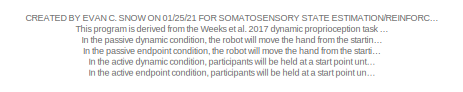
[diagram: root canvas - part 1/5, top left region]
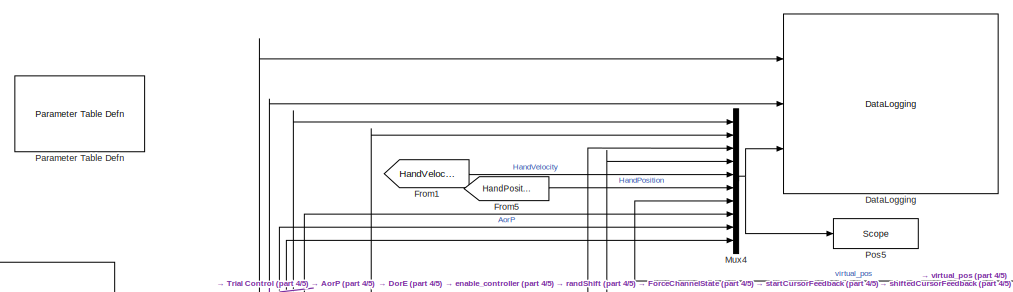
[diagram: root canvas - part 2/5, central region]
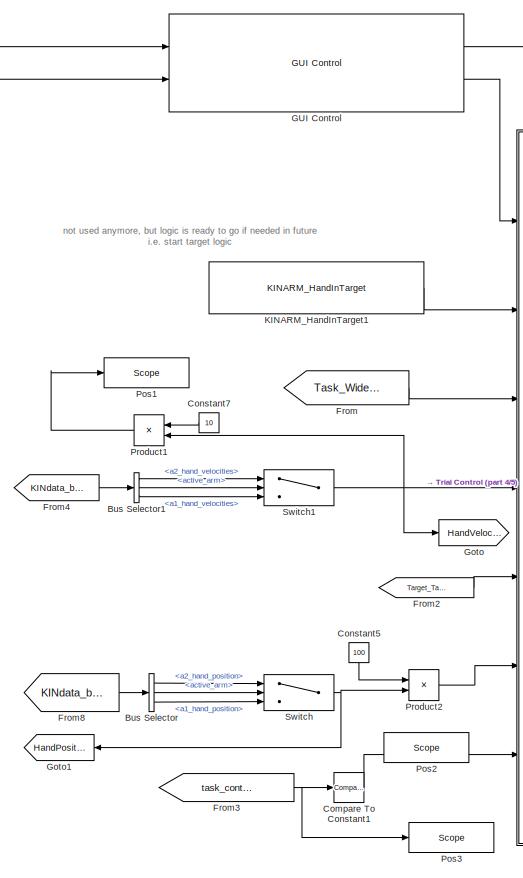
[diagram: root canvas - part 3/5, bottom left region]
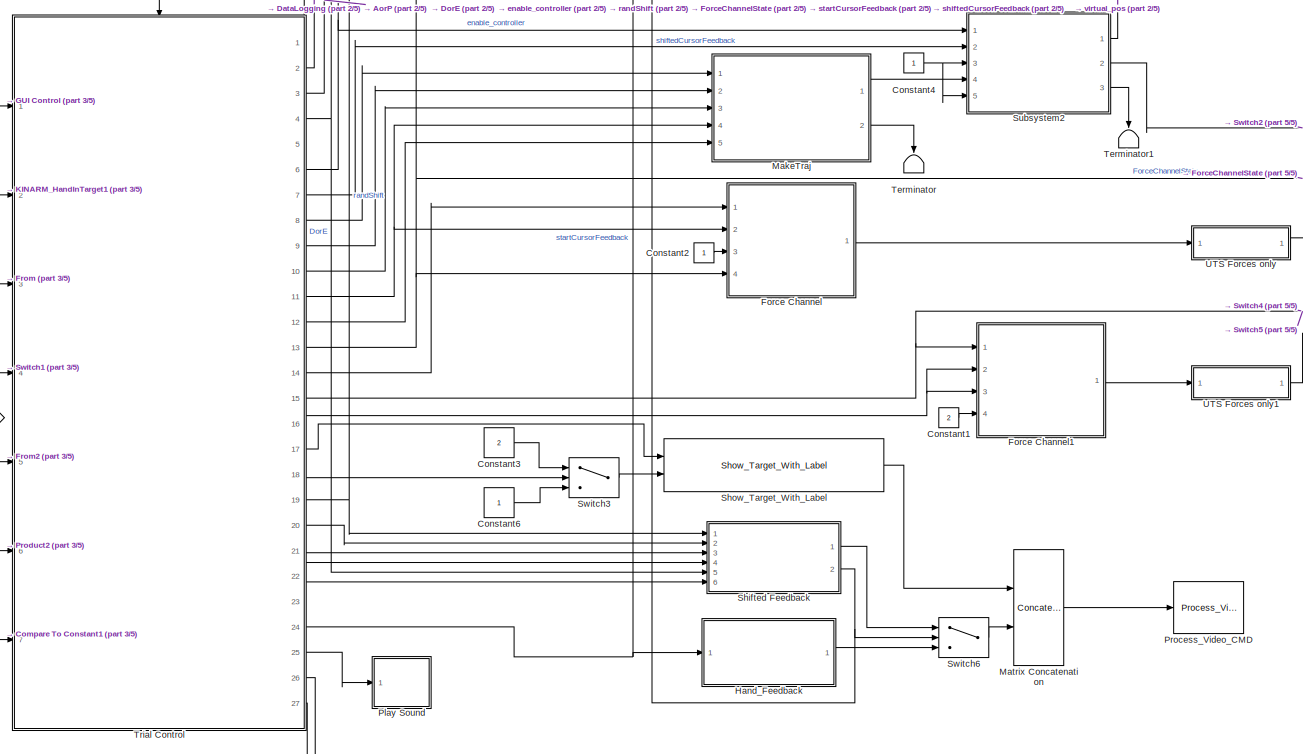
[diagram: root canvas - part 4/5, bottom center region]
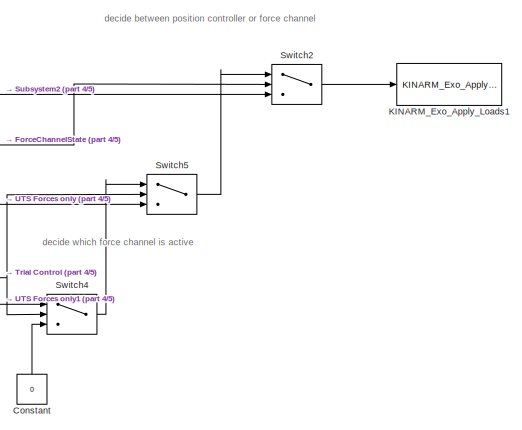
[diagram: root canvas - part 5/5, bottom right region]
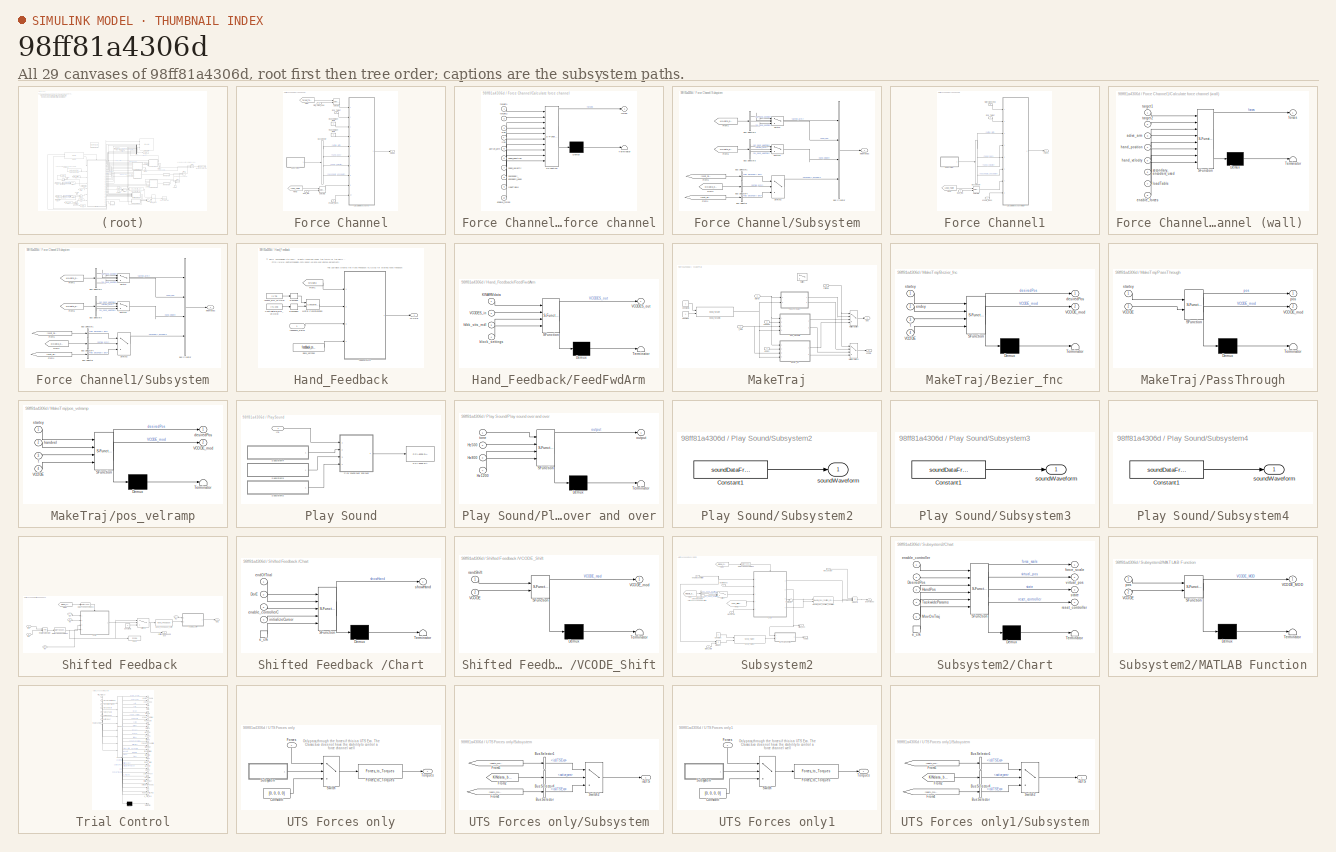
[diagram: thumbnail index - all 29 canvases of the model, root first then tree order]
MODEL slx_98ff81a4306d
KIND model
CONFIG AbsTol = auto
CONFIG FixedStep = BKIN_STEP_TIME
CONFIG MaxStep = auto
CONFIG MinStep = auto
CONFIG RelTol = 1e-3
CONFIG SampleTimeConstraint = Unconstrained
CONFIG Solver = ode4
CONFIG SolverMode = MultiTasking
CONFIG SolverName = ode4
CONFIG StartFcn =  warndlg('Dexterit-E models cannot run under simulation. Please compile your model and run it from within Dexterit-E.');set_param(bdroot,'SimulationCommand','stop')
CONFIG StartTime = 0.0
CONFIG StopTime = inf
WORKSPACE source: MAT-file member
WORKSPACE col_x = 1
BLOCK [BusSelector] Bus Selector
  OutputSignals = Robot2.a2_hand_position,KINDataGeneral.active_arm,Robot1.a1_hand_position
  Ports = [1, 3]
BLOCK [BusSelector] Bus Selector1
  OutputSignals = Robot2.a2_hand_velocities,KINDataGeneral.active_arm,Robot1.a1_hand_velocities
  Ports = [1, 3]
BLOCK [Reference] Compare To Constant1  REF=simulink/Logic and Bit
Operations/Compare
To Constant
  OutDataTypeStr = boolean
  Ports = [1, 1]
  SourceBlock = simulink/Logic and Bit\nOperations/Compare\nTo Constant
  SourceType = Compare To Constant
  ZeroCross = on
  const = 0
  relop = >
BLOCK [Constant] Constant
  Value = 0
BLOCK [Constant] Constant1
  Value = 2
BLOCK [Constant] Constant2
BLOCK [Constant] Constant3
  Value = 2
BLOCK [Constant] Constant4
BLOCK [Constant] Constant5
  Value = 100
BLOCK [Constant] Constant6
BLOCK [Constant] Constant7
  Value = 10
BLOCK [Reference] DataLogging  REF=General/DataLogging
  Ports = [3]
  SourceBlock = General/DataLogging
  SourceType = DataLogging
  ecat_include = on
  log_analog_inputs = on
  log_event_codes = on
  show_time_remaining = off
BLOCK [SubSystem] Force Channel
  Ports = [4, 1]
  RequestExecContextInheritance = off
BLOCK [BusSelector] Force Channel/Bus Selector
  OutputSignals = active_arm,hand_pos,hand_velocity,secondary_encoders
  Ports = [1, 4]
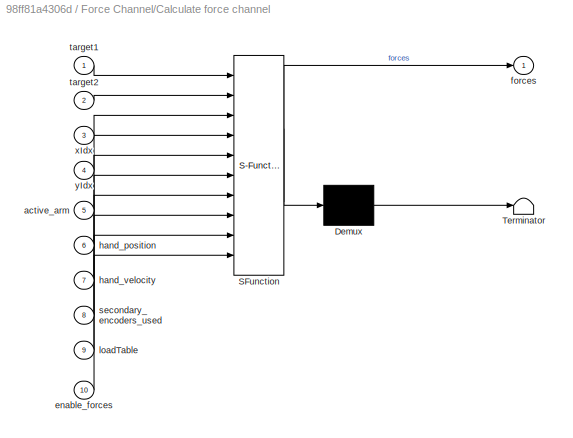
BLOCK [SubSystem] Force Channel/Calculate force channel
  ErrorFcn = Stateflow.Translate.translate
  PermitHierarchicalResolution = ExplicitOnly
  Ports = [10, 1]
  RequestExecContextInheritance = off
  SFBlockType = MATLAB Function
  TreatAsAtomicUnit = on
BLOCK [Demux] Force Channel/Calculate force channel/ Demux 
  Outputs = 1
  Ports = [1, 1]
BLOCK [S-Function] Force Channel/Calculate force channel/ SFunction 
  EnableBusSupport = on
  FunctionName = sf_sfun
  PortCounts = [10 2]
  Ports = [10, 2]
  Tag = Stateflow S-Function SML_SSE_RL 5
BLOCK [Terminator] Force Channel/Calculate force channel/ Terminator 
BLOCK [Inport] Force Channel/Calculate force channel/active_arm
  IconDisplay = Port number
  Port = 5
BLOCK [Inport] Force Channel/Calculate force channel/enable_forces
  IconDisplay = Port number
  Port = 10
BLOCK [Outport] Force Channel/Calculate force channel/forces
  IconDisplay = Port number
BLOCK [Inport] Force Channel/Calculate force channel/hand_position
  IconDisplay = Port number
  Port = 6
BLOCK [Inport] Force Channel/Calculate force channel/hand_velocity
  IconDisplay = Port number
  Port = 7
BLOCK [Inport] Force Channel/Calculate force channel/loadTable
  IconDisplay = Port number
  Port = 9
BLOCK [Inport] Force Channel/Calculate force channel/secondary_encoders_used
  IconDisplay = Port number
  Port = 8
BLOCK [Inport] Force Channel/Calculate force channel/target1
  IconDisplay = Port number
BLOCK [Inport] Force Channel/Calculate force channel/target2
  IconDisplay = Port number
  Port = 2
BLOCK [Inport] Force Channel/Calculate force channel/xIdx
  IconDisplay = Port number
  Port = 3
BLOCK [Inport] Force Channel/Calculate force channel/yIdx
  IconDisplay = Port number
  Port = 4
BLOCK [Inport] Force Channel/End_Target
  IconDisplay = Port number
  Port = 2
BLOCK [Outport] Force Channel/Forces
  IconDisplay = Port number
BLOCK [From] Force Channel/From
  CloseFcn = tagdialog Close
  GotoTag = Target_Table
  TagVisibility = global
BLOCK [From] Force Channel/From3
  CloseFcn = tagdialog Close
  GotoTag = Load_Table
  TagVisibility = global
BLOCK [Selector] Force Channel/Selector
  IndexOptions = Index vector (port),Select all
  Indices = 1,-1
  InputPortWidth = 3
  NumberOfDimensions = 2
  OutputSizes = slselsubs([(-2),(-2)],1),slselsubs([(-2),(-2)],2)
  Ports = [2, 1]
BLOCK [Selector] Force Channel/Selector2
  IndexOptions = Index vector (port),Select all
  Indices = 1,-1
  InputPortWidth = 3
  NumberOfDimensions = 2
  OutputSizes = slselsubs([(-2),(-2)],1),slselsubs([(-2),(-2)],2)
  Ports = [2, 1]
BLOCK [Inport] Force Channel/Start_Target_Row
  IconDisplay = Port number
BLOCK [SubSystem] Force Channel/Subsystem
  Ports = [0, 1]
  RequestExecContextInheritance = off
BLOCK [BusCreator] Force Channel/Subsystem/Bus Creator
  DisplayOption = bar
  Ports = [4, 1]
BLOCK [BusSelector] Force Channel/Subsystem/Bus Selector
  OutputSignals = R1.Has Secondary Enc
  Ports = [1, 1]
BLOCK [BusSelector] Force Channel/Subsystem/Bus Selector1
  OutputSignals = R2.Has Secondary Enc
  Ports = [1, 1]
BLOCK [BusSelector] Force Channel/Subsystem/Bus Selector2
  OutputSignals = Robot2.a2_hand_position,KINDataGeneral.active_arm,Robot1.a1_hand_position
  Ports = [1, 3]
BLOCK [BusSelector] Force Channel/Subsystem/Bus Selector3
  OutputSignals = Robot2.a2_hand_velocities,KINDataGeneral.active_arm,Robot1.a1_hand_velocities
  Ports = [1, 3]
BLOCK [BusSelector] Force Channel/Subsystem/Bus Selector4
  OutputSignals = KINDataGeneral.active_arm
  Ports = [1, 1]
BLOCK [From] Force Channel/Subsystem/From1
  CloseFcn = tagdialog Close
  GotoTag = KINdata_bus
  TagVisibility = global
BLOCK [From] Force Channel/Subsystem/From2
  CloseFcn = tagdialog Close
  GotoTag = KINdata_bus
  TagVisibility = global
BLOCK [From] Force Channel/Subsystem/From4
  CloseFcn = tagdialog Close
  GotoTag = robot1_motor_parameters
  TagVisibility = global
BLOCK [From] Force Channel/Subsystem/From5
  CloseFcn = tagdialog Close
  GotoTag = robot2_motor_parameters
  TagVisibility = global
BLOCK [From] Force Channel/Subsystem/From6
  CloseFcn = tagdialog Close
  GotoTag = KINdata_bus
  TagVisibility = global
BLOCK [Switch] Force Channel/Subsystem/Switch
  InputSameDT = off
  SaturateOnIntegerOverflow = off
  Threshold = 2
BLOCK [Switch] Force Channel/Subsystem/Switch1
  InputSameDT = off
  SaturateOnIntegerOverflow = off
  Threshold = 2
BLOCK [Switch] Force Channel/Subsystem/Switch2
  InputSameDT = off
  SaturateOnIntegerOverflow = off
  Threshold = 2
BLOCK [Outport] Force Channel/Subsystem/kinematics
  IconDisplay = Port number
BLOCK [Constant] Force Channel/X index in target table
BLOCK [Constant] Force Channel/Y index in target table
  Value = 2
BLOCK [Inport] Force Channel/enable_forces
  IconDisplay = Port number
  Port = 4
BLOCK [Inport] Force Channel/load_row
  IconDisplay = Port number
  Port = 3
BLOCK [SubSystem] Force Channel1
  Ports = [4, 1]
  RequestExecContextInheritance = off
BLOCK [BusSelector] Force Channel1/Bus Selector
  OutputSignals = active_arm,hand_pos,hand_velocity,secondary_encoders
  Ports = [1, 4]
BLOCK [SubSystem] Force Channel1/Calculate force channel (wall) 
  ErrorFcn = Stateflow.Translate.translate
  PermitHierarchicalResolution = ExplicitOnly
  Ports = [8, 1]
  RequestExecContextInheritance = off
  SFBlockType = MATLAB Function
  TreatAsAtomicUnit = on
BLOCK [Demux] Force Channel1/Calculate force channel (wall) / Demux 
  Outputs = 1
  Ports = [1, 1]
BLOCK [S-Function] Force Channel1/Calculate force channel (wall) / SFunction 
  EnableBusSupport = on
  FunctionName = sf_sfun
  PortCounts = [8 2]
  Ports = [8, 2]
  Tag = Stateflow S-Function SML_SSE_RL 3
BLOCK [Terminator] Force Channel1/Calculate force channel (wall) / Terminator 
BLOCK [Inport] Force Channel1/Calculate force channel (wall) /active_arm
  IconDisplay = Port number
  Port = 3
BLOCK [Inport] Force Channel1/Calculate force channel (wall) /enable_forces
  IconDisplay = Port number
  Port = 8
BLOCK [Outport] Force Channel1/Calculate force channel (wall) /forces
  IconDisplay = Port number
BLOCK [Inport] Force Channel1/Calculate force channel (wall) /hand_position
  IconDisplay = Port number
  Port = 4
BLOCK [Inport] Force Channel1/Calculate force channel (wall) /hand_velocity
  IconDisplay = Port number
  Port = 5
BLOCK [Inport] Force Channel1/Calculate force channel (wall) /loadTable
  IconDisplay = Port number
  Port = 7
BLOCK [Inport] Force Channel1/Calculate force channel (wall) /secondary_encoders_used
  IconDisplay = Port number
  Port = 6
BLOCK [Inport] Force Channel1/Calculate force channel (wall) /target1
  IconDisplay = Port number
BLOCK [Inport] Force Channel1/Calculate force channel (wall) /target2
  IconDisplay = Port number
  Port = 2
BLOCK [Inport] Force Channel1/End_Target
  IconDisplay = Port number
  Port = 3
BLOCK [Outport] Force Channel1/Forces
  IconDisplay = Port number
BLOCK [From] Force Channel1/From3
  CloseFcn = tagdialog Close
  GotoTag = Load_Table
  TagVisibility = global
BLOCK [Selector] Force Channel1/Selector2
  IndexOptions = Index vector (port),Select all
  Indices = 1,-1
  InputPortWidth = 3
  NumberOfDimensions = 2
  OutputSizes = slselsubs([(-2),(-2)],1),slselsubs([(-2),(-2)],2)
  Ports = [2, 1]
BLOCK [Inport] Force Channel1/Start_Target_Row
  IconDisplay = Port number
  Port = 2
BLOCK [SubSystem] Force Channel1/Subsystem
  Ports = [0, 1]
  RequestExecContextInheritance = off
BLOCK [BusCreator] Force Channel1/Subsystem/Bus Creator
  DisplayOption = bar
  Ports = [4, 1]
BLOCK [BusSelector] Force Channel1/Subsystem/Bus Selector
  OutputSignals = R1.Has Secondary Enc
  Ports = [1, 1]
BLOCK [BusSelector] Force Channel1/Subsystem/Bus Selector1
  OutputSignals = R2.Has Secondary Enc
  Ports = [1, 1]
BLOCK [BusSelector] Force Channel1/Subsystem/Bus Selector2
  OutputSignals = Robot2.a2_hand_position,KINDataGeneral.active_arm,Robot1.a1_hand_position
  Ports = [1, 3]
BLOCK [BusSelector] Force Channel1/Subsystem/Bus Selector3
  OutputSignals = Robot2.a2_hand_velocities,KINDataGeneral.active_arm,Robot1.a1_hand_velocities
  Ports = [1, 3]
BLOCK [BusSelector] Force Channel1/Subsystem/Bus Selector4
  OutputSignals = KINDataGeneral.active_arm
  Ports = [1, 1]
BLOCK [From] Force Channel1/Subsystem/From1
  CloseFcn = tagdialog Close
  GotoTag = KINdata_bus
  TagVisibility = global
BLOCK [From] Force Channel1/Subsystem/From2
  CloseFcn = tagdialog Close
  GotoTag = KINdata_bus
  TagVisibility = global
BLOCK [From] Force Channel1/Subsystem/From4
  CloseFcn = tagdialog Close
  GotoTag = robot1_motor_parameters
  TagVisibility = global
BLOCK [From] Force Channel1/Subsystem/From5
  CloseFcn = tagdialog Close
  GotoTag = robot2_motor_parameters
  TagVisibility = global
BLOCK [From] Force Channel1/Subsystem/From6
  CloseFcn = tagdialog Close
  GotoTag = KINdata_bus
  TagVisibility = global
BLOCK [Switch] Force Channel1/Subsystem/Switch
  InputSameDT = off
  SaturateOnIntegerOverflow = off
  Threshold = 2
BLOCK [Switch] Force Channel1/Subsystem/Switch1
  InputSameDT = off
  SaturateOnIntegerOverflow = off
  Threshold = 2
BLOCK [Switch] Force Channel1/Subsystem/Switch2
  InputSameDT = off
  SaturateOnIntegerOverflow = off
  Threshold = 2
BLOCK [Outport] Force Channel1/Subsystem/kinematics
  IconDisplay = Port number
BLOCK [Inport] Force Channel1/enable_forces
  IconDisplay = Port number
BLOCK [Inport] Force Channel1/load_row
  IconDisplay = Port number
  Port = 4
BLOCK [From] From
  GotoTag = Task_Wide_Parameters
  TagVisibility = global
BLOCK [From] From1
  GotoTag = HandVelocity
BLOCK [From] From2
  GotoTag = Target_Table
  TagVisibility = global
BLOCK [From] From3
  GotoTag = task_control_button
  TagVisibility = global
BLOCK [From] From4
  CloseFcn = tagdialog Close
  GotoTag = KINdata_bus
  TagVisibility = global
BLOCK [From] From5
  GotoTag = HandPosition
BLOCK [From] From8
  GotoTag = KINdata_bus
  TagVisibility = global
BLOCK [Reference] GUI Control  REF=General/GUI Control
  Lcols = 4
  Ports = [2, 2]
  SourceBlock = General/GUI Control
  SourceType = GUI Control
  Target_Type = 1
  Vcols = 3
  XYcols = [1 2]
  indices_padding = [0 0 0 0;0 0 0 0]
  load_table_rows = 20
  show_repeat_trial_flag = on
  target_table_rows = 64
  target_type_str = Circle
  task_version = 1.0
  tp_table_rows = 100
  use_custom_tp = off
BLOCK [Goto] Goto
  GotoTag = HandVelocity
BLOCK [Goto] Goto1
  GotoTag = HandPosition
BLOCK [SubSystem] Hand_Feedback
  AncestorBlock = KINARM_general/Hand_Feedback
  Ports = [1, 1]
  RequestExecContextInheritance = off
BLOCK [Constant] Hand_Feedback/Assess_arm_VCODE
  Value = [1:70]
BLOCK [Constant] Hand_Feedback/Contralateral_arm_VCODE
  Value = [71:140]
BLOCK [SubSystem] Hand_Feedback/FeedFwdArm
  ErrorFcn = Stateflow.Translate.translate
  PermitHierarchicalResolution = ExplicitOnly
  Ports = [4, 1]
  RTWFileNameOpts = Use function name
  RTWSystemCode = Nonreusable function
  RequestExecContextInheritance = off
  SFBlockType = MATLAB Function
  TreatAsAtomicUnit = on
BLOCK [Demux] Hand_Feedback/FeedFwdArm/ Demux 
  Outputs = 1
  Ports = [1, 1]
BLOCK [S-Function] Hand_Feedback/FeedFwdArm/ SFunction 
  EnableBusSupport = on
  FunctionName = sf_sfun
  PortCounts = [4 2]
  Ports = [4, 2]
  Tag = Stateflow S-Function SML_SSE_RL 12
BLOCK [Terminator] Hand_Feedback/FeedFwdArm/ Terminator 
BLOCK [Inport] Hand_Feedback/FeedFwdArm/KINARMdata
  IconDisplay = Port number
BLOCK [Inport] Hand_Feedback/FeedFwdArm/VCODES_in
  IconDisplay = Port number
  Port = 2
BLOCK [Outport] Hand_Feedback/FeedFwdArm/VCODES_out
  IconDisplay = Port number
BLOCK [Inport] Hand_Feedback/FeedFwdArm/block_settings
  IconDisplay = Port number
  Port = 4
BLOCK [Inport] Hand_Feedback/FeedFwdArm/fdbk_stts_mdl
  IconDisplay = Port number
  Port = 3
BLOCK [From] Hand_Feedback/From1
  CloseFcn = tagdialog Close
  GotoTag = KINdata
  TagVisibility = global
BLOCK [Concatenate] Hand_Feedback/Matrix Concatenation
  Mode = Multidimensional array
  Ports = [2, 1]
BLOCK [Reshape] Hand_Feedback/Reshape
  OutputDimensionality = Row vector (2-D)
  Ports = [1, 1]
BLOCK [Reshape] Hand_Feedback/Reshape1
  OutputDimensionality = Row vector (2-D)
  Ports = [1, 1]
BLOCK [Outport] Hand_Feedback/VCODE
  IconDisplay = Port number
BLOCK [Constant] Hand_Feedback/block_settings
  Value = feedback_cntl_src
BLOCK [Inport] Hand_Feedback/feedback_status
  IconDisplay = Port number
BLOCK [Reference] KINARM_Exo_Apply_Loads1  REF=KINARM_loads/KINARM_Exo_Apply_Loads
  Ports = [1]
  SourceBlock = KINARM_loads/KINARM_Exo_Apply_Loads
  SourceType = KINARM_Exo_Apply_Loads
  down_duration = 200
  limit_motors = off
  max_torque = 12
  up_duration = 200
BLOCK [Reference] KINARM_HandInTarget1  REF=KINARM_general/KINARM_HandInTarget
  Commented = on
  Ports = [0, 1]
  SourceBlock = KINARM_general/KINARM_HandInTarget
  SourceType = KINARM_HandInTarget
  attribcol1 = [5 4 0]
  attribcol2 = [0 0 0]
  attribcol3 = [0 0 0]
  attribcol4 = [0 0 0]
  attribcol5 = [0 0 0]
  num_states = 1
  target_type = Rectangle
  use_dominant_hand = on
BLOCK [SubSystem] MakeTraj
  Ports = [5, 2]
  RequestExecContextInheritance = off
BLOCK [SubSystem] MakeTraj/Bezier_fnc
  ErrorFcn = Stateflow.Translate.translate
  PermitHierarchicalResolution = ExplicitOnly
  Ports = [4, 2]
  RequestExecContextInheritance = off
  SFBlockType = MATLAB Function
  TreatAsAtomicUnit = on
BLOCK [Demux] MakeTraj/Bezier_fnc/ Demux 
  Outputs = 1
  Ports = [1, 1]
BLOCK [S-Function] MakeTraj/Bezier_fnc/ SFunction 
  EnableBusSupport = on
  FunctionName = sf_sfun
  PortCounts = [4 3]
  Ports = [4, 3]
  Tag = Stateflow S-Function SML_SSE_RL 1
BLOCK [Terminator] MakeTraj/Bezier_fnc/ Terminator 
BLOCK [Inport] MakeTraj/Bezier_fnc/VCODE
  IconDisplay = Port number
  Port = 4
BLOCK [Outport] MakeTraj/Bezier_fnc/VCODE_mod
  IconDisplay = Port number
  Port = 2
BLOCK [Outport] MakeTraj/Bezier_fnc/desiredPos
  IconDisplay = Port number
BLOCK [Inport] MakeTraj/Bezier_fnc/endxy
  IconDisplay = Port number
  Port = 2
BLOCK [Inport] MakeTraj/Bezier_fnc/startxy
  IconDisplay = Port number
BLOCK [Inport] MakeTraj/Bezier_fnc/t
  IconDisplay = Port number
  Port = 3
BLOCK [Constant] MakeTraj/Constant
BLOCK [Constant] MakeTraj/Constant1
BLOCK [MultiPortSwitch] MakeTraj/Multiport Switch
  DataPortIndices = {2,1,0}
  DataPortOrder = Specify indices
  DiagnosticForDefault = Warning
  InputSameDT = off
  Ports = [4, 1]
  SaturateOnIntegerOverflow = off
BLOCK [MultiPortSwitch] MakeTraj/Multiport Switch1
  DataPortIndices = {2,1,0}
  DataPortOrder = Specify indices
  DiagnosticForDefault = Warning
  InputSameDT = off
  Ports = [4, 1]
  SaturateOnIntegerOverflow = off
BLOCK [SubSystem] MakeTraj/PassThrough
  ErrorFcn = Stateflow.Translate.translate
  PermitHierarchicalResolution = ExplicitOnly
  Ports = [2, 2]
  RequestExecContextInheritance = off
  SFBlockType = MATLAB Function
  TreatAsAtomicUnit = on
BLOCK [Demux] MakeTraj/PassThrough/ Demux 
  Outputs = 1
  Ports = [1, 1]
BLOCK [S-Function] MakeTraj/PassThrough/ SFunction 
  EnableBusSupport = on
  FunctionName = sf_sfun
  PortCounts = [2 3]
  Ports = [2, 3]
  Tag = Stateflow S-Function SML_SSE_RL 11
BLOCK [Terminator] MakeTraj/PassThrough/ Terminator 
BLOCK [Inport] MakeTraj/PassThrough/VCODE
  IconDisplay = Port number
  Port = 2
BLOCK [Outport] MakeTraj/PassThrough/VCODE_mod
  IconDisplay = Port number
  Port = 2
BLOCK [Outport] MakeTraj/PassThrough/pos
  IconDisplay = Port number
BLOCK [Inport] MakeTraj/PassThrough/startxy
  IconDisplay = Port number
BLOCK [Reference] MakeTraj/Show_Target3  REF=Video/Show_Target
  Ports = [2, 1]
  SourceBlock = Video/Show_Target
  SourceType = Show_Target
  attribcol1 = [COLOR_INIT 0 0 RADIUS_VIS]
  attribcol2 = [0 0 0 0]
  attribcol3 = [0 0 0 0]
  attribcol4 = [0 0 0 0]
  attribcol5 = [0 0 0 0]
  num_col = 4
  num_states = 1
  opacity = 100
  source = dialog
  stateindices_padding = [0 0 0 0 0 0 0;0 0 0 0 0 0 0;0 0 0 0 0 0 0;0 0 0 0 0 0 0;0 0 0 0 0 0 0]
  target_display = Both subject and operator displays
  target_type = Circle
BLOCK [Switch] MakeTraj/Switch
  Commented = on
  Criteria = u2 > Threshold
  InputSameDT = off
  SaturateOnIntegerOverflow = off
BLOCK [Outport] MakeTraj/VCODE
  IconDisplay = Port number
  Port = 2
BLOCK [Inport] MakeTraj/endxy
  IconDisplay = Port number
  Port = 4
BLOCK [Inport] MakeTraj/handvel
  IconDisplay = Port number
  Port = 3
BLOCK [Outport] MakeTraj/pos
  IconDisplay = Port number
  OutDataTypeStr = double
  PortDimensions = [1 2]
BLOCK [SubSystem] MakeTraj/pos_velramp
  ErrorFcn = Stateflow.Translate.translate
  PermitHierarchicalResolution = ExplicitOnly
  Ports = [4, 2]
  RequestExecContextInheritance = off
  SFBlockType = MATLAB Function
  TreatAsAtomicUnit = on
BLOCK [Demux] MakeTraj/pos_velramp/ Demux 
  Outputs = 1
  Ports = [1, 1]
BLOCK [S-Function] MakeTraj/pos_velramp/ SFunction 
  EnableBusSupport = on
  FunctionName = sf_sfun
  PortCounts = [4 3]
  Ports = [4, 3]
  Tag = Stateflow S-Function SML_SSE_RL 7
BLOCK [Terminator] MakeTraj/pos_velramp/ Terminator 
BLOCK [Inport] MakeTraj/pos_velramp/VCODE
  IconDisplay = Port number
  Port = 4
BLOCK [Outport] MakeTraj/pos_velramp/VCODE_mod
  IconDisplay = Port number
  Port = 2
BLOCK [Outport] MakeTraj/pos_velramp/desiredPos
  IconDisplay = Port number
BLOCK [Inport] MakeTraj/pos_velramp/handvel
  IconDisplay = Port number
  Port = 2
BLOCK [Inport] MakeTraj/pos_velramp/startxy
  IconDisplay = Port number
BLOCK [Inport] MakeTraj/pos_velramp/t
  IconDisplay = Port number
  Port = 3
BLOCK [Inport] MakeTraj/startxy
  IconDisplay = Port number
  Port = 2
  PortDimensions = [1 2]
BLOCK [Inport] MakeTraj/t_step
  IconDisplay = Port number
  PortDimensions = 1
BLOCK [Inport] MakeTraj/trajtype
  IconDisplay = Port number
  Port = 5
  PortDimensions = 1
BLOCK [Concatenate] Matrix Concatenation
  Mode = Multidimensional array
  Ports = [2, 1]
BLOCK [Mux] Mux4
  DisplayOption = bar
  Inputs = 10
  Ports = [10, 1]
BLOCK [Reference] Parameter Table Defn  REF=General/Parameter Table Defn
  Ports = []
  ShowInLibBrowser = 0
  SourceBlock = General/Parameter Table Defn
  UserDataPersistent = on
BLOCK [SubSystem] Play Sound
  Ports = [1]
  RequestExecContextInheritance = off
BLOCK [Inport] Play Sound/In1
  IconDisplay = Signal name
BLOCK [Reference] Play Sound/PCI-6229 DA  REF=xpcnilib/D//A/M Series/PCI-6229 DA
  Ports = [1]
  SourceBlock = xpcnilib/D//A/M Series/PCI-6229 DA
  SourceType = danipci6229
  channel = [1]
  initValue = [0]
  reset = [1]
  sampletime = -1
  slot = -1
BLOCK [SubSystem] Play Sound/Play sound over and over
  ErrorFcn = Stateflow.Translate.translate
  PermitHierarchicalResolution = ExplicitOnly
  Ports = [4, 1]
  RequestExecContextInheritance = off
  SFBlockType = MATLAB Function
  TreatAsAtomicUnit = on
BLOCK [Demux] Play Sound/Play sound over and over/ Demux 
  Outputs = 1
  Ports = [1, 1]
BLOCK [S-Function] Play Sound/Play sound over and over/ SFunction 
  EnableBusSupport = on
  FunctionName = sf_sfun
  PortCounts = [4 2]
  Ports = [4, 2]
  Tag = Stateflow S-Function SML_SSE_RL 4
BLOCK [Terminator] Play Sound/Play sound over and over/ Terminator 
BLOCK [Inport] Play Sound/Play sound over and over/Hz1200
  IconDisplay = Port number
  Port = 4
BLOCK [Inport] Play Sound/Play sound over and over/Hz500
  IconDisplay = Port number
  Port = 2
BLOCK [Inport] Play Sound/Play sound over and over/Hz800
  IconDisplay = Port number
  Port = 3
BLOCK [Outport] Play Sound/Play sound over and over/output
  IconDisplay = Port number
BLOCK [Inport] Play Sound/Play sound over and over/tone
  IconDisplay = Port number
BLOCK [SubSystem] Play Sound/Subsystem2
  Ports = [0, 1]
  RequestExecContextInheritance = off
BLOCK [Constant] Play Sound/Subsystem2/Constant1
  SampleTime = -1
  Value = soundDataFromFile
BLOCK [Outport] Play Sound/Subsystem2/soundWaveform
  IconDisplay = Port number
BLOCK [SubSystem] Play Sound/Subsystem3
  Ports = [0, 1]
  RequestExecContextInheritance = off
BLOCK [Constant] Play Sound/Subsystem3/Constant1
  Value = soundDataFromFile
BLOCK [Outport] Play Sound/Subsystem3/soundWaveform
  IconDisplay = Port number
BLOCK [SubSystem] Play Sound/Subsystem4
  Ports = [0, 1]
  RequestExecContextInheritance = off
BLOCK [Constant] Play Sound/Subsystem4/Constant1
  Value = soundDataFromFile
BLOCK [Outport] Play Sound/Subsystem4/soundWaveform
  IconDisplay = Port number
BLOCK [Reference] Pos1  REF=slrtlib/Displays and
Logging/Scope 
  Ports = [1]
  SourceBlock = slrtlib/Displays and\nLogging/Scope
  SourceType = xpcscopeblock
  autorestart = off
  autostart = on
  dynamicfilemode = off
  filename = data.dat
  formatstr = '%15.6f'
  grid = on
  interleave = 1
  maxwritefilesize = 512*1024^2
  mode = Lazy
  noprepostsamples = 0
  nosamples = 250
  scopeno = 4
  scopetype = Target
  triggerlevel = 0.0
  triggermode = FreeRun
  triggersample = 0
  triggerscope = 1
  triggersignal = 1
  triggerslope = Either
  trigsignalfromport = off
  viewmode = Graphical redraw
  writesize = 512
  ylimits = [-1,1]
BLOCK [Reference] Pos2  REF=slrtlib/Displays and
Logging/Scope 
  Commented = on
  Ports = [1]
  SourceBlock = slrtlib/Displays and\nLogging/Scope
  SourceType = xpcscopeblock
  autorestart = off
  autostart = on
  dynamicfilemode = off
  filename = data.dat
  formatstr = '%15.6f'
  grid = on
  interleave = 1
  maxwritefilesize = 512*1024^2
  mode = Lazy
  noprepostsamples = 0
  nosamples = 250
  scopeno = 3
  scopetype = Target
  triggerlevel = 0.0
  triggermode = FreeRun
  triggersample = 0
  triggerscope = 1
  triggersignal = 1
  triggerslope = Either
  trigsignalfromport = off
  viewmode = Numerical
  writesize = 512
  ylimits = [-10,10]
BLOCK [Reference] Pos3  REF=slrtlib/Displays and
Logging/Scope 
  Ports = [1]
  SourceBlock = slrtlib/Displays and\nLogging/Scope
  SourceType = xpcscopeblock
  autorestart = off
  autostart = on
  dynamicfilemode = off
  filename = data.dat
  formatstr = '%15.6f'
  grid = on
  interleave = 1
  maxwritefilesize = 512*1024^2
  mode = Lazy
  noprepostsamples = 0
  nosamples = 250
  scopeno = 5
  scopetype = Target
  triggerlevel = 0.0
  triggermode = FreeRun
  triggersample = 0
  triggerscope = 1
  triggersignal = 1
  triggerslope = Either
  trigsignalfromport = off
  viewmode = Numerical
  writesize = 512
  ylimits = [-10,10]
BLOCK [Reference] Pos5  REF=slrtlib/Displays and
Logging/Scope 
  Ports = [1]
  SourceBlock = slrtlib/Displays and\nLogging/Scope
  SourceType = xpcscopeblock
  autorestart = off
  autostart = on
  dynamicfilemode = off
  filename = data.dat
  formatstr = '%15.6f'
  grid = on
  interleave = 1
  maxwritefilesize = 512*1024^2
  mode = Lazy
  noprepostsamples = 0
  nosamples = 250
  scopeno = 1
  scopetype = Target
  triggerlevel = 0.0
  triggermode = FreeRun
  triggersample = 0
  triggerscope = 1
  triggersignal = 1
  triggerslope = Either
  trigsignalfromport = off
  viewmode = Numerical
  writesize = 512
  ylimits = [-10,10]
BLOCK [Reference] Process_Video_CMD  REF=Video/Process_Video_CMD
  Ports = [1]
  SourceBlock = Video/Process_Video_CMD
  SourceType = Process_Video_CMD
  video_delay = 50
BLOCK [Product] Product1
  InputSameDT = off
  OutDataTypeStr = Inherit: Inherit via internal rule
  Ports = [2, 1]
  RndMeth = Floor
  SaturateOnIntegerOverflow = off
BLOCK [Product] Product2
  InputSameDT = off
  OutDataTypeStr = Inherit: Inherit via internal rule
  Ports = [2, 1]
  RndMeth = Floor
  SaturateOnIntegerOverflow = off
BLOCK [SubSystem] Shifted Feedback 
  Ports = [6, 2]
  RequestExecContextInheritance = off
BLOCK [SubSystem] Shifted Feedback /Chart
  ErrorFcn = Stateflow.Translate.translate
  PermitHierarchicalResolution = ExplicitOnly
  Ports = [4, 1, 0, 1]
  RequestExecContextInheritance = off
  SFBlockType = Chart
  TreatAsAtomicUnit = on
BLOCK [Demux] Shifted Feedback /Chart/ Demux 
  Outputs = 1
  Ports = [1, 1]
BLOCK [S-Function] Shifted Feedback /Chart/ SFunction 
  EnableBusSupport = on
  FunctionName = sf_sfun
  PortCounts = [5 2]
  Ports = [5, 2]
  Tag = Stateflow S-Function SML_SSE_RL 10
BLOCK [Terminator] Shifted Feedback /Chart/ Terminator 
BLOCK [Inport] Shifted Feedback /Chart/DorE
  IconDisplay = Port number
  Port = 2
BLOCK [TriggerPort] Shifted Feedback /Chart/e_clk
  Ports = [0, 1]
  ShowOutputPort = on
  StatesWhenEnabling = held
  TriggerType = either
BLOCK [Inport] Shifted Feedback /Chart/enable_controllerC
  IconDisplay = Port number
  Port = 3
BLOCK [Inport] Shifted Feedback /Chart/endOfTrial
  IconDisplay = Port number
BLOCK [Inport] Shifted Feedback /Chart/initializeCursor
  IconDisplay = Port number
  Port = 4
BLOCK [Outport] Shifted Feedback /Chart/showHand
  IconDisplay = Port number
BLOCK [Constant] Shifted Feedback /Constant1
  Value = 0
BLOCK [DataTypeConversion] Shifted Feedback /Data Type Conversion1
  OutDataTypeStr = double
  RndMeth = Round
  SaturateOnIntegerOverflow = off
BLOCK [DataTypeConversion] Shifted Feedback /Data Type Conversion2
  RndMeth = Floor
  SaturateOnIntegerOverflow = off
BLOCK [From] Shifted Feedback /From7
  CloseFcn = tagdialog Close
  GotoTag = global_clock
  TagVisibility = global
BLOCK [Reference] Shifted Feedback /Hand_Feedback_Shift   REF=KINARM_general/Hand_Feedback
  Ports = [1, 1]
  SourceBlock = KINARM_general/Hand_Feedback
  SourceType = Hand_Feedback
  feedback_cntl_src = status only
BLOCK [Inport] Shifted Feedback /In1
  IconDisplay = Port number
BLOCK [Inport] Shifted Feedback /In2
  IconDisplay = Port number
  Port = 2
BLOCK [Inport] Shifted Feedback /In3
  IconDisplay = Port number
  Port = 3
BLOCK [Inport] Shifted Feedback /In4
  IconDisplay = Port number
  Port = 4
BLOCK [Inport] Shifted Feedback /In5
  IconDisplay = Port number
  Port = 5
BLOCK [Inport] Shifted Feedback /In6
  IconDisplay = Port number
  Port = 6
BLOCK [Outport] Shifted Feedback /Out1
  IconDisplay = Port number
BLOCK [Reference] Shifted Feedback /Pos1  REF=slrtlib/Displays and
Logging/Scope 
  Ports = [1]
  SourceBlock = slrtlib/Displays and\nLogging/Scope
  SourceType = xpcscopeblock
  autorestart = off
  autostart = on
  dynamicfilemode = off
  filename = data.dat
  formatstr = '%15.6f'
  grid = on
  interleave = 1
  maxwritefilesize = 512*1024^2
  mode = Lazy
  noprepostsamples = 0
  nosamples = 250
  scopeno = 2
  scopetype = Target
  triggerlevel = 0.0
  triggermode = FreeRun
  triggersample = 0
  triggerscope = 1
  triggersignal = 1
  triggerslope = Either
  trigsignalfromport = off
  viewmode = Numerical
  writesize = 512
  ylimits = [-10,10]
BLOCK [RelationalOperator] Shifted Feedback /Relational Operator
  InputSameDT = off
  OutDataTypeStr = boolean
  Ports = [2, 1]
BLOCK [Switch] Shifted Feedback /Switch5
  Criteria = u2 > Threshold
  InputSameDT = off
  SaturateOnIntegerOverflow = off
BLOCK [SubSystem] Shifted Feedback /VCODE_Shift
  ErrorFcn = Stateflow.Translate.translate
  PermitHierarchicalResolution = ExplicitOnly
  Ports = [2, 1]
  RequestExecContextInheritance = off
  SFBlockType = MATLAB Function
  TreatAsAtomicUnit = on
BLOCK [Demux] Shifted Feedback /VCODE_Shift/ Demux 
  Outputs = 1
  Ports = [1, 1]
BLOCK [S-Function] Shifted Feedback /VCODE_Shift/ SFunction 
  EnableBusSupport = on
  FunctionName = sf_sfun
  PortCounts = [2 2]
  Ports = [2, 2]
  Tag = Stateflow S-Function SML_SSE_RL 2
BLOCK [Terminator] Shifted Feedback /VCODE_Shift/ Terminator 
BLOCK [Inport] Shifted Feedback /VCODE_Shift/VCODE
  IconDisplay = Port number
  Port = 2
BLOCK [Outport] Shifted Feedback /VCODE_Shift/VCODE_mod
  IconDisplay = Port number
BLOCK [Inport] Shifted Feedback /VCODE_Shift/randShift
  IconDisplay = Port number
BLOCK [Outport] Shifted Feedback /shiftedCursorFeedback
  IconDisplay = Port number
  Port = 2
BLOCK [Reference] Show_Target_With_Label  REF=Video/Show_Target_With_Label
  Ports = [2, 1]
  SourceBlock = Video/Show_Target_With_Label
  SourceType = Show_Target_With_Label
  attribcol1 = [0 0 0 0 0 0 0]
  attribcol2 = [0 0 0 0 LABEL_TEXT COLOR_SELECT LABEL_HEIGHT]
  attribcol3 = [0 0 0 0 0 0 0]
  attribcol4 = [0 0 0 0 0 0 0]
  attribcol5 = [0 0 0 0 0 0 0]
  num_states = 2
  opacity = 100
  source = dialog
  stateindices_padding = [0 0 0 0;0 0 0 0;0 0 0 0;0 0 0 0;0 0 0 0]
  target_display = Both subject and operator displays
  target_type = Circle
BLOCK [SubSystem] Subsystem2
  Ports = [5, 3]
  RequestExecContextInheritance = off
BLOCK [BusSelector] Subsystem2/Bus Selector
  OutputSignals = Robot2.a2_hand_position,KINDataGeneral.active_arm,Robot1.a1_hand_position
  Ports = [1, 3]
BLOCK [SubSystem] Subsystem2/Chart
  ErrorFcn = Stateflow.Translate.translate
  PermitHierarchicalResolution = ExplicitOnly
  Ports = [5, 4, 0, 1]
  RequestExecContextInheritance = off
  SFBlockType = Chart
  TreatAsAtomicUnit = on
BLOCK [Demux] Subsystem2/Chart/ Demux 
  Outputs = 1
  Ports = [1, 1]
BLOCK [S-Function] Subsystem2/Chart/ SFunction 
  EnableBusSupport = on
  FunctionName = sf_sfun
  PortCounts = [6 5]
  Ports = [6, 5]
  Tag = Stateflow S-Function SML_SSE_RL 8
BLOCK [Terminator] Subsystem2/Chart/ Terminator 
BLOCK [Inport] Subsystem2/Chart/DesiredPos
  IconDisplay = Port number
  Port = 2
BLOCK [Inport] Subsystem2/Chart/HandPos
  IconDisplay = Port number
  Port = 3
BLOCK [Inport] Subsystem2/Chart/MovOnTraj
  IconDisplay = Port number
  Port = 5
BLOCK [Inport] Subsystem2/Chart/TaskwideParams
  IconDisplay = Port number
  Port = 4
BLOCK [TriggerPort] Subsystem2/Chart/e_clk
  Ports = [0, 1]
  ShowOutputPort = on
  StatesWhenEnabling = held
  TriggerType = either
BLOCK [Inport] Subsystem2/Chart/enable_controller
  IconDisplay = Port number
BLOCK [Outport] Subsystem2/Chart/force_scale
  IconDisplay = Port number
BLOCK [Outport] Subsystem2/Chart/reset_controller
  IconDisplay = Port number
  Port = 4
BLOCK [Outport] Subsystem2/Chart/state
  IconDisplay = Port number
  Port = 3
BLOCK [Outport] Subsystem2/Chart/virtual_pos
  IconDisplay = Port number
  Port = 2
BLOCK [Constant] Subsystem2/Constant
  Value = 2
BLOCK [DataTypeConversion] Subsystem2/Data Type Conversion2
  RndMeth = Floor
  SaturateOnIntegerOverflow = off
BLOCK [Outport] Subsystem2/EXO Torques
  IconDisplay = Port number
  Port = 2
BLOCK [From] Subsystem2/From
  GotoTag = KINdata_bus
  TagVisibility = global
BLOCK [From] Subsystem2/From1
  GotoTag = Task_Wide_Parameters
  TagVisibility = global
BLOCK [From] Subsystem2/From4
  CloseFcn = tagdialog Close
  GotoTag = global_clock
  TagVisibility = global
BLOCK [Reference] Subsystem2/KINARM_Exo_Position_Controller  REF=KINARM_loads/KINARM_Exo_Position_Controller
  KINARM_Type = Human
  Ports = [2, 1]
  SourceBlock = KINARM_loads/KINARM_Exo_Position_Controller
  SourceType = KINARM_Exo_Position_Controller
  angles_or_XY = End-point (global x/y)
  inertias_for_FF = KINARM robot & arm troughs & subject
  sample_time = 0.001
  use_dom_hand = on
BLOCK [SubSystem] Subsystem2/MATLAB Function
  ErrorFcn = Stateflow.Translate.translate
  PermitHierarchicalResolution = ExplicitOnly
  Ports = [2, 1]
  RequestExecContextInheritance = off
  SFBlockType = MATLAB Function
  TreatAsAtomicUnit = on
BLOCK [Demux] Subsystem2/MATLAB Function/ Demux 
  Outputs = 1
  Ports = [1, 1]
BLOCK [S-Function] Subsystem2/MATLAB Function/ SFunction 
  EnableBusSupport = on
  FunctionName = sf_sfun
  PortCounts = [2 2]
  Ports = [2, 2]
  Tag = Stateflow S-Function SML_SSE_RL 9
BLOCK [Terminator] Subsystem2/MATLAB Function/ Terminator 
BLOCK [Inport] Subsystem2/MATLAB Function/VCODE
  IconDisplay = Port number
  Port = 2
BLOCK [Outport] Subsystem2/MATLAB Function/VCODE_MOD
  IconDisplay = Port number
BLOCK [Inport] Subsystem2/MATLAB Function/pos
  IconDisplay = Port number
BLOCK [Inport] Subsystem2/MovOnTraj
  IconDisplay = Port number
  Port = 5
BLOCK [Product] Subsystem2/Product
  InputSameDT = off
  OutDataTypeStr = Inherit: Inherit via internal rule
  Ports = [2, 1]
  RndMeth = Floor
  SaturateOnIntegerOverflow = off
BLOCK [Product] Subsystem2/Product2
  InputSameDT = off
  Inputs = 3
  OutDataTypeStr = Inherit: Inherit via internal rule
  Ports = [3, 1]
  RndMeth = Floor
  SaturateOnIntegerOverflow = off
BLOCK [Reference] Subsystem2/Show_Target  REF=Video/Show_Target
  Ports = [2, 1]
  SourceBlock = Video/Show_Target
  SourceType = Show_Target
  attribcol1 = [COLOR_INIT 0 0 RADIUS_VIS]
  attribcol2 = [0 0 0 0]
  attribcol3 = [0 0 0 0]
  attribcol4 = [0 0 0 0]
  attribcol5 = [0 0 0 0]
  num_col = 4
  num_states = 1
  opacity = 100
  source = dialog
  stateindices_padding = [0 0 0 0 0 0 0;0 0 0 0 0 0 0;0 0 0 0 0 0 0;0 0 0 0 0 0 0;0 0 0 0 0 0 0]
  target_display = Both subject and operator displays
  target_type = Circle
BLOCK [Switch] Subsystem2/Switch
  Criteria = u2 > Threshold
  InputSameDT = off
  SaturateOnIntegerOverflow = off
  Threshold = 1.5
BLOCK [Terminator] Subsystem2/Terminator
BLOCK [Outport] Subsystem2/VCODE
  IconDisplay = Port number
  Port = 3
BLOCK [Inport] Subsystem2/desiredpos
  IconDisplay = Port number
  Port = 4
BLOCK [Inport] Subsystem2/enable_controller
  IconDisplay = Port number
BLOCK [Inport] Subsystem2/force_scaler
  IconDisplay = Port number
  Port = 2
BLOCK [Inport] Subsystem2/target_state
  IconDisplay = Port number
  Port = 3
BLOCK [Outport] Subsystem2/virtual_pos
  IconDisplay = Port number
BLOCK [Switch] Switch
  Criteria = u2 > Threshold
  InputSameDT = off
  SaturateOnIntegerOverflow = off
  Threshold = 1.5
BLOCK [Switch] Switch1
  Criteria = u2 > Threshold
  InputSameDT = off
  SaturateOnIntegerOverflow = off
  Threshold = 1.5
BLOCK [Switch] Switch2
  Criteria = u2 > Threshold
  InputSameDT = off
  SaturateOnIntegerOverflow = off
BLOCK [Switch] Switch3
  Criteria = u2 > Threshold
  InputSameDT = off
  SaturateOnIntegerOverflow = off
BLOCK [Switch] Switch4
  Criteria = u2 > Threshold
  InputSameDT = off
  SaturateOnIntegerOverflow = off
BLOCK [Switch] Switch5
  Criteria = u2 > Threshold
  InputSameDT = off
  SaturateOnIntegerOverflow = off
BLOCK [Switch] Switch6
  Criteria = u2 > Threshold
  InputSameDT = off
  SaturateOnIntegerOverflow = off
BLOCK [Terminator] Terminator
BLOCK [Terminator] Terminator1
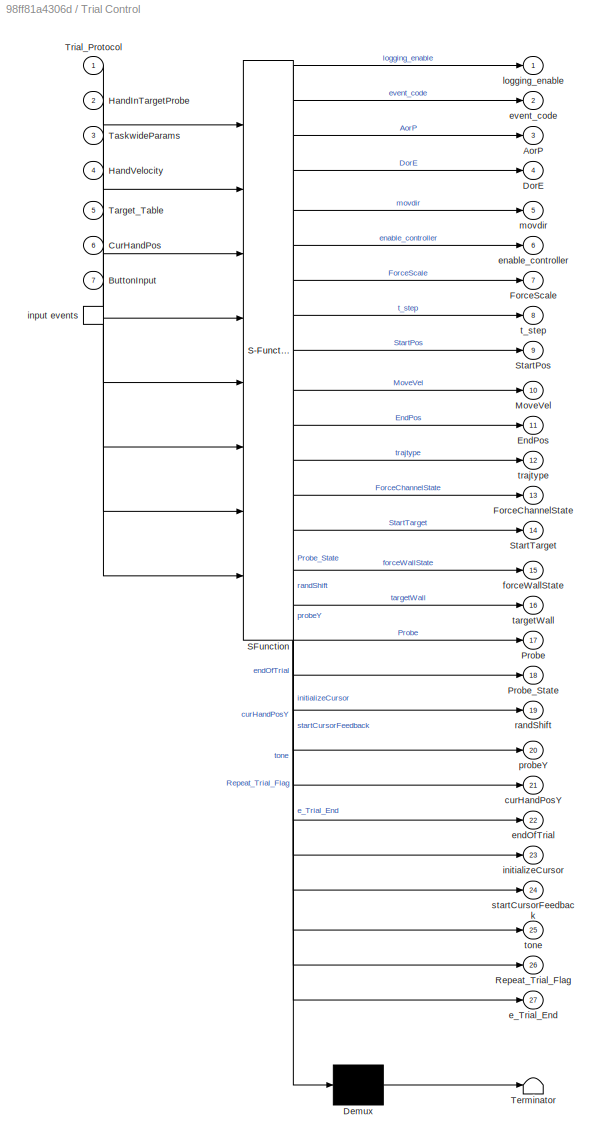
BLOCK [SubSystem] Trial Control
  ErrorFcn = Stateflow.Translate.translate
  PermitHierarchicalResolution = ExplicitOnly
  Ports = [7, 27, 0, 1]
  RequestExecContextInheritance = off
  SFBlockType = Chart
  TreatAsAtomicUnit = on
BLOCK [Demux] Trial Control/ Demux 
  Outputs = 1
  Ports = [1, 1]
BLOCK [S-Function] Trial Control/ SFunction 
  EnableBusSupport = on
  FunctionName = sf_sfun
  Parameters = pi
  PortCounts = [8 28]
  Ports = [8, 28]
  Tag = Stateflow S-Function SML_SSE_RL 6
BLOCK [Terminator] Trial Control/ Terminator 
BLOCK [TriggerPort] Trial Control/ input events 
  Ports = [0, 1]
  ShowOutputPort = on
  TriggerType = either
BLOCK [Outport] Trial Control/AorP
  IconDisplay = Port number
  Port = 3
BLOCK [Inport] Trial Control/ButtonInput
  IconDisplay = Port number
  Port = 7
BLOCK [Inport] Trial Control/CurHandPos
  IconDisplay = Port number
  Port = 6
BLOCK [Outport] Trial Control/DorE
  IconDisplay = Port number
  Port = 4
BLOCK [Outport] Trial Control/EndPos
  IconDisplay = Port number
  Port = 11
BLOCK [Outport] Trial Control/ForceChannelState
  IconDisplay = Port number
  Port = 13
BLOCK [Outport] Trial Control/ForceScale
  IconDisplay = Port number
  Port = 7
BLOCK [Inport] Trial Control/HandInTargetProbe
  IconDisplay = Port number
  Port = 2
BLOCK [Inport] Trial Control/HandVelocity
  IconDisplay = Port number
  Port = 4
BLOCK [Outport] Trial Control/MoveVel
  IconDisplay = Port number
  Port = 10
BLOCK [Outport] Trial Control/Probe
  IconDisplay = Port number
  Port = 17
BLOCK [Outport] Trial Control/Probe_State
  IconDisplay = Port number
  Port = 18
BLOCK [Outport] Trial Control/Repeat_Trial_Flag
  IconDisplay = Port number
  Port = 26
BLOCK [Outport] Trial Control/StartPos
  IconDisplay = Port number
  Port = 9
BLOCK [Outport] Trial Control/StartTarget
  IconDisplay = Port number
  Port = 14
BLOCK [Inport] Trial Control/Target_Table
  IconDisplay = Port number
  Port = 5
BLOCK [Inport] Trial Control/TaskwideParams
  IconDisplay = Port number
  Port = 3
BLOCK [Inport] Trial Control/Trial_Protocol
  IconDisplay = Port number
BLOCK [Outport] Trial Control/curHandPosY
  IconDisplay = Port number
  Port = 21
BLOCK [Outport] Trial Control/e_Trial_End
  IconDisplay = Port number
  Port = 27
BLOCK [Outport] Trial Control/enable_controller
  IconDisplay = Port number
  Port = 6
BLOCK [Outport] Trial Control/endOfTrial
  IconDisplay = Port number
  Port = 22
BLOCK [Outport] Trial Control/event_code
  IconDisplay = Port number
  Port = 2
BLOCK [Outport] Trial Control/forceWallState
  IconDisplay = Port number
  Port = 15
BLOCK [Outport] Trial Control/initializeCursor
  IconDisplay = Port number
  Port = 23
BLOCK [Outport] Trial Control/logging_enable
  IconDisplay = Port number
BLOCK [Outport] Trial Control/movdir
  IconDisplay = Port number
  Port = 5
BLOCK [Outport] Trial Control/probeY
  IconDisplay = Port number
  Port = 20
BLOCK [Outport] Trial Control/randShift
  IconDisplay = Port number
  Port = 19
BLOCK [Outport] Trial Control/startCursorFeedback
  IconDisplay = Port number
  Port = 24
BLOCK [Outport] Trial Control/t_step
  IconDisplay = Port number
  Port = 8
BLOCK [Outport] Trial Control/targetWall
  IconDisplay = Port number
  Port = 16
BLOCK [Outport] Trial Control/tone
  IconDisplay = Port number
  Port = 25
BLOCK [Outport] Trial Control/trajtype
  IconDisplay = Port number
  Port = 12
BLOCK [SubSystem] UTS Forces only
  Ports = [1, 1]
  RequestExecContextInheritance = off
BLOCK [Constant] UTS Forces only/Constant
  Value = [0, 0, 0, 0]
BLOCK [Inport] UTS Forces only/Forces
  IconDisplay = Port number
BLOCK [Reference] UTS Forces only/Forces_to_Torques  REF=KINARM_loads/Forces_to_Torques
  Ports = [1, 1]
  SourceBlock = KINARM_loads/Forces_to_Torques
  SourceType = Forces_to_Torques
BLOCK [SubSystem] UTS Forces only/Subsystem
  Ports = [0, 1]
  RequestExecContextInheritance = off
BLOCK [BusSelector] UTS Forces only/Subsystem/Bus Selector
  OutputSignals = R1Info.isUTSExo
  Ports = [1, 1]
BLOCK [BusSelector] UTS Forces only/Subsystem/Bus Selector1
  OutputSignals = R2Info.isUTSExo
  Ports = [1, 1]
BLOCK [BusSelector] UTS Forces only/Subsystem/Bus Selector4
  OutputSignals = KINDataGeneral.active_arm
  Ports = [1, 1]
BLOCK [From] UTS Forces only/Subsystem/From2
  CloseFcn = tagdialog Close
  GotoTag = KINdata_bus
  TagVisibility = global
BLOCK [From] UTS Forces only/Subsystem/From4
  CloseFcn = tagdialog Close
  GotoTag = robot1_motor_parameters
  TagVisibility = global
BLOCK [From] UTS Forces only/Subsystem/From5
  CloseFcn = tagdialog Close
  GotoTag = robot2_motor_parameters
  TagVisibility = global
BLOCK [Switch] UTS Forces only/Subsystem/Switch2
  InputSameDT = off
  SaturateOnIntegerOverflow = off
  Threshold = 2
BLOCK [Outport] UTS Forces only/Subsystem/isUTS
  IconDisplay = Port number
BLOCK [Switch] UTS Forces only/Switch
  Criteria = u2 > Threshold
  InputSameDT = off
  SaturateOnIntegerOverflow = off
BLOCK [Outport] UTS Forces only/Torques
  IconDisplay = Port number
BLOCK [SubSystem] UTS Forces only1
  Ports = [1, 1]
  RequestExecContextInheritance = off
BLOCK [Constant] UTS Forces only1/Constant
  Value = [0, 0, 0, 0]
BLOCK [Inport] UTS Forces only1/Forces
  IconDisplay = Port number
BLOCK [Reference] UTS Forces only1/Forces_to_Torques  REF=KINARM_loads/Forces_to_Torques
  Ports = [1, 1]
  SourceBlock = KINARM_loads/Forces_to_Torques
  SourceType = Forces_to_Torques
BLOCK [SubSystem] UTS Forces only1/Subsystem
  Ports = [0, 1]
  RequestExecContextInheritance = off
BLOCK [BusSelector] UTS Forces only1/Subsystem/Bus Selector
  OutputSignals = R1Info.isUTSExo
  Ports = [1, 1]
BLOCK [BusSelector] UTS Forces only1/Subsystem/Bus Selector1
  OutputSignals = R2Info.isUTSExo
  Ports = [1, 1]
BLOCK [BusSelector] UTS Forces only1/Subsystem/Bus Selector4
  OutputSignals = KINDataGeneral.active_arm
  Ports = [1, 1]
BLOCK [From] UTS Forces only1/Subsystem/From2
  CloseFcn = tagdialog Close
  GotoTag = KINdata_bus
  TagVisibility = global
BLOCK [From] UTS Forces only1/Subsystem/From4
  CloseFcn = tagdialog Close
  GotoTag = robot1_motor_parameters
  TagVisibility = global
BLOCK [From] UTS Forces only1/Subsystem/From5
  CloseFcn = tagdialog Close
  GotoTag = robot2_motor_parameters
  TagVisibility = global
BLOCK [Switch] UTS Forces only1/Subsystem/Switch2
  InputSameDT = off
  SaturateOnIntegerOverflow = off
  Threshold = 2
BLOCK [Outport] UTS Forces only1/Subsystem/isUTS
  IconDisplay = Port number
BLOCK [Switch] UTS Forces only1/Switch
  Criteria = u2 > Threshold
  InputSameDT = off
  SaturateOnIntegerOverflow = off
BLOCK [Outport] UTS Forces only1/Torques
  IconDisplay = Port number
ANNOTATION (root): CREATED BY EVAN C. SNOW ON 01/25/21 FOR SOMATOSENSORY STATE ESTIMATION/REINFORCEMENT LEARNING TASK (Therrien, A. et. al) This program is derived from the Weeks et al. 2017 dynamic proprioception task and moved into the vertical (+/- y direction). The movement controller begins all trials by passively bringing the participant to a designated starting point recorded in the TP table (from DEX GUI). I...<+2284ch>
ANNOTATION (root): decide between position controller or force channel
ANNOTATION (root): decide which force channel is active
ANNOTATION (root): not used anymore, but logic is ready to go if needed in future i.e. start target logic
ANNOTATION Hand_Feedback: This Sub-Block creates the Hand Feedback VCODEs for drawing hand feedback
ANNOTATION Hand_Feedback: <copyright redacted>
ANNOTATION Subsystem2: 1 is right arm, 2 is left arm Switch passes the top input if true
ANNOTATION UTS Forces only: Only pass through the forces if this is a UTS Exo. The Classic Exo does not have the stability to control a force channel well
ANNOTATION UTS Forces only1: Only pass through the forces if this is a UTS Exo. The Classic Exo does not have the stability to control a force channel well
LINE Bus Selector1:1 -> Switch1:1
LINE Bus Selector1:2 -> Switch1:2
LINE Bus Selector1:3 -> Switch1:3
LINE Bus Selector:1 -> Switch:1
LINE Bus Selector:2 -> Switch:2
LINE Bus Selector:3 -> Switch:3
LINE Compare To Constant1:1 -> Trial Control:7
LINE Constant1:1 -> Force Channel1:4
LINE Constant2:1 -> Force Channel:3
LINE Constant3:1 -> Switch3:1
NET Constant4:1 -> Subsystem2:3, Subsystem2:5
LINE Constant5:1 -> Product2:1
LINE Constant6:1 -> Switch3:3
LINE Constant7:1 -> Product1:1
LINE Constant:1 -> Switch4:3
LINE Force Channel/Bus Selector:1 -> Force Channel/Calculate force channel:5
LINE Force Channel/Bus Selector:2 -> Force Channel/Calculate force channel:6
LINE Force Channel/Bus Selector:3 -> Force Channel/Calculate force channel:7
LINE Force Channel/Bus Selector:4 -> Force Channel/Calculate force channel:8
LINE Force Channel/Calculate force channel:1 -> Force Channel/Forces:1
LINE Force Channel/End_Target:1 -> Force Channel/Calculate force channel:2
LINE Force Channel/From3:1 -> Force Channel/Selector2:1
LINE Force Channel/From:1 -> Force Channel/Selector:1
LINE Force Channel/Selector2:1 -> Force Channel/Calculate force channel:9
LINE Force Channel/Selector:1 -> Force Channel/Calculate force channel:1
LINE Force Channel/Start_Target_Row:1 -> Force Channel/Selector:2
LINE Force Channel/Subsystem/Bus Creator:1 -> Force Channel/Subsystem/kinematics:1
LINE Force Channel/Subsystem/Bus Selector1:1 -> Force Channel/Subsystem/Switch2:1
LINE Force Channel/Subsystem/Bus Selector2:1 -> Force Channel/Subsystem/Switch:1
NET Force Channel/Subsystem/Bus Selector2:2 -> Force Channel/Subsystem/Bus Creator:1, Force Channel/Subsystem/Switch:2
LINE Force Channel/Subsystem/Bus Selector2:3 -> Force Channel/Subsystem/Switch:3
LINE Force Channel/Subsystem/Bus Selector3:1 -> Force Channel/Subsystem/Switch1:1
LINE Force Channel/Subsystem/Bus Selector3:2 -> Force Channel/Subsystem/Switch1:2
LINE Force Channel/Subsystem/Bus Selector3:3 -> Force Channel/Subsystem/Switch1:3
LINE Force Channel/Subsystem/Bus Selector4:1 -> Force Channel/Subsystem/Switch2:2
LINE Force Channel/Subsystem/Bus Selector:1 -> Force Channel/Subsystem/Switch2:3
LINE Force Channel/Subsystem/From1:1 -> Force Channel/Subsystem/Bus Selector2:1
LINE Force Channel/Subsystem/From2:1 -> Force Channel/Subsystem/Bus Selector4:1
LINE Force Channel/Subsystem/From4:1 -> Force Channel/Subsystem/Bus Selector:1
LINE Force Channel/Subsystem/From5:1 -> Force Channel/Subsystem/Bus Selector1:1
LINE Force Channel/Subsystem/From6:1 -> Force Channel/Subsystem/Bus Selector3:1
LINE Force Channel/Subsystem/Switch1:1 -> Force Channel/Subsystem/Bus Creator:3
LINE Force Channel/Subsystem/Switch2:1 -> Force Channel/Subsystem/Bus Creator:4
LINE Force Channel/Subsystem/Switch:1 -> Force Channel/Subsystem/Bus Creator:2
LINE Force Channel/Subsystem:1 -> Force Channel/Bus Selector:1
LINE Force Channel/X index in target table:1 -> Force Channel/Calculate force channel:3
LINE Force Channel/Y index in target table:1 -> Force Channel/Calculate force channel:4
LINE Force Channel/enable_forces:1 -> Force Channel/Calculate force channel:10
LINE Force Channel/load_row:1 -> Force Channel/Selector2:2
LINE Force Channel1/Bus Selector:1 -> Force Channel1/Calculate force channel (wall) :3
LINE Force Channel1/Bus Selector:2 -> Force Channel1/Calculate force channel (wall) :4
LINE Force Channel1/Bus Selector:3 -> Force Channel1/Calculate force channel (wall) :5
LINE Force Channel1/Bus Selector:4 -> Force Channel1/Calculate force channel (wall) :6
LINE Force Channel1/Calculate force channel (wall) :1 -> Force Channel1/Forces:1
LINE Force Channel1/End_Target:1 -> Force Channel1/Calculate force channel (wall) :2
LINE Force Channel1/From3:1 -> Force Channel1/Selector2:1
LINE Force Channel1/Selector2:1 -> Force Channel1/Calculate force channel (wall) :7
LINE Force Channel1/Start_Target_Row:1 -> Force Channel1/Calculate force channel (wall) :1
LINE Force Channel1/Subsystem/Bus Creator:1 -> Force Channel1/Subsystem/kinematics:1
LINE Force Channel1/Subsystem/Bus Selector1:1 -> Force Channel1/Subsystem/Switch2:1
LINE Force Channel1/Subsystem/Bus Selector2:1 -> Force Channel1/Subsystem/Switch:1
NET Force Channel1/Subsystem/Bus Selector2:2 -> Force Channel1/Subsystem/Bus Creator:1, Force Channel1/Subsystem/Switch:2
LINE Force Channel1/Subsystem/Bus Selector2:3 -> Force Channel1/Subsystem/Switch:3
LINE Force Channel1/Subsystem/Bus Selector3:1 -> Force Channel1/Subsystem/Switch1:1
LINE Force Channel1/Subsystem/Bus Selector3:2 -> Force Channel1/Subsystem/Switch1:2
LINE Force Channel1/Subsystem/Bus Selector3:3 -> Force Channel1/Subsystem/Switch1:3
LINE Force Channel1/Subsystem/Bus Selector4:1 -> Force Channel1/Subsystem/Switch2:2
LINE Force Channel1/Subsystem/Bus Selector:1 -> Force Channel1/Subsystem/Switch2:3
LINE Force Channel1/Subsystem/From1:1 -> Force Channel1/Subsystem/Bus Selector2:1
LINE Force Channel1/Subsystem/From2:1 -> Force Channel1/Subsystem/Bus Selector4:1
LINE Force Channel1/Subsystem/From4:1 -> Force Channel1/Subsystem/Bus Selector:1
LINE Force Channel1/Subsystem/From5:1 -> Force Channel1/Subsystem/Bus Selector1:1
LINE Force Channel1/Subsystem/From6:1 -> Force Channel1/Subsystem/Bus Selector3:1
LINE Force Channel1/Subsystem/Switch1:1 -> Force Channel1/Subsystem/Bus Creator:3
LINE Force Channel1/Subsystem/Switch2:1 -> Force Channel1/Subsystem/Bus Creator:4
LINE Force Channel1/Subsystem/Switch:1 -> Force Channel1/Subsystem/Bus Creator:2
LINE Force Channel1/Subsystem:1 -> Force Channel1/Bus Selector:1
LINE Force Channel1/enable_forces:1 -> Force Channel1/Calculate force channel (wall) :8
LINE Force Channel1/load_row:1 -> Force Channel1/Selector2:2
LINE Force Channel1:1 -> UTS Forces only1:1
LINE Force Channel:1 -> UTS Forces only:1
LINE From1:1 -> Mux4:5
LINE From2:1 -> Trial Control:5
NET From3:1 -> Compare To Constant1:1, Pos3:1
LINE From4:1 -> Bus Selector1:1
LINE From5:1 -> Mux4:6
LINE From8:1 -> Bus Selector:1
LINE From:1 -> Trial Control:3
LINE GUI Control:1 -> Trial Control:trigger
LINE GUI Control:2 -> Trial Control:1
LINE Hand_Feedback:1 -> Switch6:3
LINE KINARM_HandInTarget1:1 -> Trial Control:2
LINE MakeTraj/Bezier_fnc:1 -> MakeTraj/Multiport Switch:4
LINE MakeTraj/Bezier_fnc:2 -> MakeTraj/Multiport Switch1:4
LINE MakeTraj/Constant1:1 -> MakeTraj/Show_Target3:1
LINE MakeTraj/Constant:1 -> MakeTraj/Show_Target3:2
LINE MakeTraj/Multiport Switch1:1 -> MakeTraj/VCODE:1
LINE MakeTraj/Multiport Switch:1 -> MakeTraj/pos:1
LINE MakeTraj/PassThrough:1 -> MakeTraj/Multiport Switch:2
LINE MakeTraj/PassThrough:2 -> MakeTraj/Multiport Switch1:2
NET MakeTraj/Show_Target3:1 -> MakeTraj/Bezier_fnc:4, MakeTraj/PassThrough:2, MakeTraj/pos_velramp:4
LINE MakeTraj/endxy:1 -> MakeTraj/Bezier_fnc:2
LINE MakeTraj/handvel:1 -> MakeTraj/pos_velramp:2
LINE MakeTraj/pos_velramp:1 -> MakeTraj/Multiport Switch:3
LINE MakeTraj/pos_velramp:2 -> MakeTraj/Multiport Switch1:3
NET MakeTraj/startxy:1 -> MakeTraj/Bezier_fnc:1, MakeTraj/PassThrough:1, MakeTraj/pos_velramp:1
NET MakeTraj/t_step:1 -> MakeTraj/Bezier_fnc:3, MakeTraj/pos_velramp:3
NET MakeTraj/trajtype:1 -> MakeTraj/Multiport Switch1:1, MakeTraj/Multiport Switch:1
LINE MakeTraj:1 -> Subsystem2:4
LINE MakeTraj:2 -> Terminator:1
LINE Matrix Concatenation:1 -> Process_Video_CMD:1
NET Mux4:1 -> DataLogging:3, Pos5:1
LINE Play Sound/In1:1 -> Play Sound/Play sound over and over:1
LINE Play Sound/Play sound over and over:1 -> Play Sound/PCI-6229 DA:1
LINE Play Sound/Subsystem2/Constant1:1 -> Play Sound/Subsystem2/soundWaveform:1
LINE Play Sound/Subsystem2:1 -> Play Sound/Play sound over and over:4
LINE Play Sound/Subsystem3/Constant1:1 -> Play Sound/Subsystem3/soundWaveform:1
LINE Play Sound/Subsystem3:1 -> Play Sound/Play sound over and over:3
LINE Play Sound/Subsystem4/Constant1:1 -> Play Sound/Subsystem4/soundWaveform:1
LINE Play Sound/Subsystem4:1 -> Play Sound/Play sound over and over:2
LINE Product1:1 -> Pos1:1
LINE Product2:1 -> Trial Control:6
LINE Shifted Feedback /Chart:1 -> Shifted Feedback /Switch5:2
LINE Shifted Feedback /Constant1:1 -> Shifted Feedback /Switch5:3
NET Shifted Feedback /Data Type Conversion1:1 -> Shifted Feedback /Chart:3, Shifted Feedback /Pos1:1, Shifted Feedback /Switch5:1
LINE Shifted Feedback /Data Type Conversion2:1 -> Shifted Feedback /Chart:trigger
LINE Shifted Feedback /From7:1 -> Shifted Feedback /Data Type Conversion2:1
LINE Shifted Feedback /Hand_Feedback_Shift :1 -> Shifted Feedback /VCODE_Shift:2
LINE Shifted Feedback /In1:1 -> Shifted Feedback /VCODE_Shift:1
LINE Shifted Feedback /In2:1 -> Shifted Feedback /Relational Operator:2
LINE Shifted Feedback /In3:1 -> Shifted Feedback /Relational Operator:1
LINE Shifted Feedback /In4:1 -> Shifted Feedback /Chart:1
LINE Shifted Feedback /In5:1 -> Shifted Feedback /Chart:2
LINE Shifted Feedback /In6:1 -> Shifted Feedback /Chart:4
LINE Shifted Feedback /Relational Operator:1 -> Shifted Feedback /Data Type Conversion1:1
NET Shifted Feedback /Switch5:1 -> Shifted Feedback /Hand_Feedback_Shift :1, Shifted Feedback /shiftedCursorFeedback:1
LINE Shifted Feedback /VCODE_Shift:1 -> Shifted Feedback /Out1:1
LINE Shifted Feedback :1 -> Switch6:1
NET Shifted Feedback :2 -> Mux4:4, Switch6:2
LINE Show_Target_With_Label:1 -> Matrix Concatenation:1
LINE Subsystem2/Bus Selector:1 -> Subsystem2/Switch:1
LINE Subsystem2/Bus Selector:2 -> Subsystem2/Switch:2
LINE Subsystem2/Bus Selector:3 -> Subsystem2/Switch:3
LINE Subsystem2/Chart:1 -> Subsystem2/Product2:2
NET Subsystem2/Chart:2 -> Subsystem2/KINARM_Exo_Position_Controller:1, Subsystem2/MATLAB Function:1, Subsystem2/virtual_pos:1
LINE Subsystem2/Chart:3 -> Subsystem2/Terminator:1
LINE Subsystem2/Chart:4 -> Subsystem2/KINARM_Exo_Position_Controller:2
LINE Subsystem2/Constant:1 -> Subsystem2/Show_Target:1
LINE Subsystem2/Data Type Conversion2:1 -> Subsystem2/Chart:trigger
LINE Subsystem2/From1:1 -> Subsystem2/Chart:4
LINE Subsystem2/From4:1 -> Subsystem2/Data Type Conversion2:1
LINE Subsystem2/From:1 -> Subsystem2/Bus Selector:1
LINE Subsystem2/KINARM_Exo_Position_Controller:1 -> Subsystem2/Product2:3
LINE Subsystem2/MATLAB Function:1 -> Subsystem2/VCODE:1
LINE Subsystem2/MovOnTraj:1 -> Subsystem2/Chart:5
LINE Subsystem2/Product2:1 -> Subsystem2/EXO Torques:1
LINE Subsystem2/Product:1 -> Subsystem2/Show_Target:2
LINE Subsystem2/Show_Target:1 -> Subsystem2/MATLAB Function:2
LINE Subsystem2/Switch:1 -> Subsystem2/Chart:3
LINE Subsystem2/desiredpos:1 -> Subsystem2/Chart:2
NET Subsystem2/enable_controller:1 -> Subsystem2/Chart:1, Subsystem2/Product:1
LINE Subsystem2/force_scaler:1 -> Subsystem2/Product2:1
LINE Subsystem2/target_state:1 -> Subsystem2/Product:2
LINE Subsystem2:1 -> Mux4:7
LINE Subsystem2:2 -> Switch2:3
LINE Subsystem2:3 -> Terminator1:1
NET Switch1:1 -> Goto:1, Product1:2, Trial Control:4
LINE Switch2:1 -> KINARM_Exo_Apply_Loads1:1
LINE Switch3:1 -> Show_Target_With_Label:2
LINE Switch4:1 -> Switch5:1
LINE Switch5:1 -> Switch2:1
LINE Switch6:1 -> Matrix Concatenation:2
NET Switch:1 -> Goto1:1, Product2:2
LINE Trial Control:1 -> DataLogging:1
LINE Trial Control:10 -> MakeTraj:3
NET Trial Control:11 -> Force Channel:2, MakeTraj:4
LINE Trial Control:12 -> MakeTraj:5
NET Trial Control:13 -> Force Channel:4, Mux4:2, Switch2:2
LINE Trial Control:14 -> Force Channel:1
NET Trial Control:15 -> Force Channel1:1, Switch4:2, Switch5:2
NET Trial Control:16 -> Force Channel1:2, Force Channel1:3
LINE Trial Control:17 -> Show_Target_With_Label:1
LINE Trial Control:18 -> Switch3:2
NET Trial Control:19 -> Mux4:8, Shifted Feedback :1
LINE Trial Control:2 -> DataLogging:2
LINE Trial Control:20 -> Shifted Feedback :2
LINE Trial Control:21 -> Shifted Feedback :3
LINE Trial Control:22 -> Shifted Feedback :4
LINE Trial Control:23 -> Shifted Feedback :6
NET Trial Control:24 -> Hand_Feedback:1, Mux4:3
LINE Trial Control:25 -> Play Sound:1
LINE Trial Control:26 -> GUI Control:1
LINE Trial Control:27 -> GUI Control:2
LINE Trial Control:3 -> Mux4:9
NET Trial Control:4 -> Mux4:10, Shifted Feedback :5
NET Trial Control:6 -> Mux4:1, Subsystem2:1
LINE Trial Control:7 -> Subsystem2:2
LINE Trial Control:8 -> MakeTraj:1
LINE Trial Control:9 -> MakeTraj:2
LINE UTS Forces only/Constant:1 -> UTS Forces only/Switch:3
LINE UTS Forces only/Forces:1 -> UTS Forces only/Switch:1
LINE UTS Forces only/Forces_to_Torques:1 -> UTS Forces only/Torques:1
LINE UTS Forces only/Subsystem/Bus Selector1:1 -> UTS Forces only/Subsystem/Switch2:1
LINE UTS Forces only/Subsystem/Bus Selector4:1 -> UTS Forces only/Subsystem/Switch2:2
LINE UTS Forces only/Subsystem/Bus Selector:1 -> UTS Forces only/Subsystem/Switch2:3
LINE UTS Forces only/Subsystem/From2:1 -> UTS Forces only/Subsystem/Bus Selector4:1
LINE UTS Forces only/Subsystem/From4:1 -> UTS Forces only/Subsystem/Bus Selector:1
LINE UTS Forces only/Subsystem/From5:1 -> UTS Forces only/Subsystem/Bus Selector1:1
LINE UTS Forces only/Subsystem/Switch2:1 -> UTS Forces only/Subsystem/isUTS:1
LINE UTS Forces only/Subsystem:1 -> UTS Forces only/Switch:2
LINE UTS Forces only/Switch:1 -> UTS Forces only/Forces_to_Torques:1
LINE UTS Forces only1/Constant:1 -> UTS Forces only1/Switch:3
LINE UTS Forces only1/Forces:1 -> UTS Forces only1/Switch:1
LINE UTS Forces only1/Forces_to_Torques:1 -> UTS Forces only1/Torques:1
LINE UTS Forces only1/Subsystem/Bus Selector1:1 -> UTS Forces only1/Subsystem/Switch2:1
LINE UTS Forces only1/Subsystem/Bus Selector4:1 -> UTS Forces only1/Subsystem/Switch2:2
LINE UTS Forces only1/Subsystem/Bus Selector:1 -> UTS Forces only1/Subsystem/Switch2:3
LINE UTS Forces only1/Subsystem/From2:1 -> UTS Forces only1/Subsystem/Bus Selector4:1
LINE UTS Forces only1/Subsystem/From4:1 -> UTS Forces only1/Subsystem/Bus Selector:1
LINE UTS Forces only1/Subsystem/From5:1 -> UTS Forces only1/Subsystem/Bus Selector1:1
LINE UTS Forces only1/Subsystem/Switch2:1 -> UTS Forces only1/Subsystem/isUTS:1
LINE UTS Forces only1/Subsystem:1 -> UTS Forces only1/Switch:2
LINE UTS Forces only1/Switch:1 -> UTS Forces only1/Forces_to_Torques:1
LINE UTS Forces only1:1 -> Switch4:1
LINE UTS Forces only:1 -> Switch5:3
note: NET lines group one-source signal fan-out (src -> all destinations, sorted); 1:1 wires keep LINE
CHART MakeTraj/Bezier_fnc states=1 transitions=1
  STATE_LABEL 'eML_blk_kernel()'
  STATE_LABEL 'SCRIPT:\nfunction [desiredPos,VCODE_mod] = fcn(startxy,endxy,t,VCODE)\n%#codegen\n\nVCODE_mod = VCODE;\n\n%clip t just in case!\nif t < 0\n    t = 0;\nelseif t > 1;\n    t = 1;\nend\n\nt = t-sin(2*pi*t)/(2*pi);  %use the bell-shaped velocity profile from the trajectory controller\n\n%linear bezier using origin and reference\n%point from the next trial\ncp1 = startxy;\ncp2 = endxy;\n\ndPos = (1-t)*cp1 + t*cp2;\n\n\ndesir...<+156ch>'
CHART Shifted Feedback
/VCODE_Shift states=1 transitions=1
  STATE_LABEL 'eML_blk_kernel()'
  STATE_LABEL 'SCRIPT:\nfunction VCODE_mod  = fcn(randShift, VCODE)\n%This function will add the shift from a set of possible shifts. For the\n%time being it will be randomly generated\n%randShift will be an integer 1:11\n\n%shiftsX = [];\n%If we want to use a list from the function:\nshiftsY = randShift;\nVCODE_mod = VCODE;\n\nshiftsY = shiftsY/1000;  %convert mm to m\n\n%VCODE_mod(1,3) = shiftsX(shift_selector);\nVCODE_mod(...<+47ch>'
CHART Force Channel1/Calculate force channel (wall)
 states=1 transitions=1
  STATE_LABEL 'eML_blk_kernel()'
  STATE_LABEL 'SCRIPT:\nfunction forces = forceChannel(target1, target2, active_arm, hand_position, hand_velocity, secondary_encoders_used, loadTable, enable_forces)\n\n\tpersistent lastForcesEnabledValue forceEnableTime clockCycle outsideChannel lastHandPosition;\n\t\n\tif isempty(lastForcesEnabledValue), lastForcesEnabledValue = 0;\t\tend\n\tif isempty(forceEnableTime),        forceEnableTime = 1;\t\t\tend\n\tif isempty(clockC...<+3608ch>'
CHART Play Sound/Play sound over and over states=1 transitions=1
  STATE_LABEL 'eML_blk_kernel()'
  STATE_LABEL 'SCRIPT:\nfunction output = fcn(tone,Hz500,Hz800,Hz1200)\n%#codegen\n\npersistent t last_tone_state\nif isempty(t), t = 0; end\nif isempty(last_tone_state), last_tone_state = 0; end\n\ntrigger = last_tone_state ~= tone;\nif trigger > 0\n    last_tone_state = tone;\nend\n\noutput = 0;\t\t% default\nif t == 0 && trigger > 0\n\t% start the playing of the sound.\n\tt = t + 1;\nend\n\nif tone == 1\n    data = Hz500;\nelseif ton...<+184ch>'
CHART Force Channel/Calculate force channel states=1 transitions=1
  STATE_LABEL 'eML_blk_kernel()'
  STATE_LABEL 'SCRIPT:\nfunction forces = forceChannel(target1, target2, xIdx, yIdx, active_arm, hand_position, hand_velocity, secondary_encoders_used, loadTable, enable_forces)\n\n\tpersistent lastForcesEnabledValue forceEnableTime clockCycle outsideChannel lastHandPosition;\n\t\n\tif isempty(lastForcesEnabledValue), lastForcesEnabledValue = 0;\t\tend\n\tif isempty(forceEnableTime),        forceEnableTime = 1;\t\t\tend\n\tif is...<+3608ch>'
CHART Trial Control states=31 transitions=44
  STATE_LABEL '<!DOCTYPE HTML PUBLIC "-//W3C//DTD HTML 4.0//EN" "http://www.w3.org/TR/REC-html40/strict.dtd">\n<html><head><meta name="qrichtext" content="1" /><style type="text/css">\np, li { white-space: pre-wrap; }\n</style></head><body style=" font-family:\'Helvetica\'; font-size:12px; font-weight:400; font-style:normal;">\n<p style=" margin-top:0px; margin-bottom:0px; margin-left:0px; margin-right:0px; -qt-block-...<+869ch>'
  STATE_LABEL 'init/\nramp_time = TaskwideParams[K_ROBOT_RAMP_TIME];\nenable_controller = 0;\ntone = 0;\nEndPos[1] = 0;\nEndPos[2] = 0;\n\nForceScale = 0;\nForceChannelState = 0; //turn off the force channel\nforceWallState = 0; //turn off force wall\n\ntrajtype = 0;  //set to 1 to be constant velocity, set to 0 to be bezier\n\nlogging_enable = 0;\nprobeY = 100;\ninitializeCursor = 1;'
  STATE_LABEL 'Main/'
  STATE_LABEL 'HoldAtStart/\nevent_code=E_AT_START;\ncurHandPosY = CurHandPos[2];\nendOfTrial = 1;\n\n//reset all the move and shift parameters\nStartTarget = Trial_Protocol[STARTTARGET_COL];\nEndTarget = Trial_Protocol[END_TARGET_COL];\ntargetWall = Target_Table[Trial_Protocol[PROBE_COL]][2]; %y value of center of probe target\nStartPos[1] = Target_Table[StartTarget][1];\nStartPos[2] = Target_Table[StartTarget][2];\nMoveV...<+299ch>'
  STATE_LABEL 'randShift = pickRand(upperBound)'
  STATE_LABEL 'SCRIPT:\nfunction randShift = pickRand(upperBound)\nrandShift = randi(upperBound)\nend\n    \n'
  STATE_LABEL 'InitTrial/\nevent_code=E_INIT_TRIAL;\nStartPos[1] = CurHandPos[1];\nStartPos[2] = CurHandPos[2];\nEndPos[1] = Target_Table[Trial_Protocol[STARTTARGET_COL]][1];\nEndPos[2] = Target_Table[Trial_Protocol[STARTTARGET_COL]][2];\nMoveTime = TaskwideParams[K_TIME_TO_START];\n//randShift = 6; //corresponding zero value from randomizing in Stateflow and not Dex\n\nenable_controller = 0;\nt_step = 0;\n\ntone = 0;\n\nlogg...<+102ch>'
  STATE_LABEL 'MoveArmToStartTarget/\nevent_code=E_MOVE_TO_START;\n\nenable_controller = 1;\ntrajtype = 0;  //set to 1 to be constant velocity, set to 0 to be bezier\nForceChannelState = 0; //turn off the force channel\nForceScale = 1; //let the automatic ramp take care of turning the forces on\n\n//increment t_step on each clock cycle\nduring:\non e_clk: t_step = t_step + (1/ (MoveTime/1000 * 1000)); \nHandVel = sqrt(Hand...<+59ch>'
  STATE_LABEL 'Selections/\nAorP = Trial_Protocol[ACTORPAS_COL];\nDorE = Trial_Protocol[DYNOREND_COL];'
  STATE_LABEL 'SetActiveMoveParameters/\n\nstartCursorFeedback = 0; //turn off hand position\n\n\n//set up the target shift parameters\nMoveTime = Trial_Protocol[MOVE_TIME_COL];\nMoveVel[1] = Trial_Protocol[MOVE_XVEL_COL];\nMoveVel[2] = Trial_Protocol[MOVE_YVEL_COL];\nEndPos[1] = Target_Table[END_TARGET_COL][1];\nEndPos[2] = Target_Table[END_TARGET_COL][2];\nvthreshMax = 0;\nvthreshUB = 0.12; //eliminate jerkiness cm/s\nmovd...<+198ch>'
  STATE_LABEL 'PassiveHoldAtStart1/\nevent_code=E_PASSIVE_HOLD_AT_START;\nForceScale = 1;\nstartCursorFeedback = 1;\nenable_controller = 1;\nt_step = 0;\ntickCount = TaskwideParams[K_TIME_HOLD_START];\n\n//movement parameters\ntrajtype = 1;  //set to 1 to be constant velocity, set to 0 to be bezier\nMoveVel[1] = Trial_Protocol[MOVE_XVEL_COL];\nMoveVel[2] = Trial_Protocol[MOVE_YVEL_COL];\nEndPos[1] = Target_Table[Trial_Proto...<+216ch>'
  STATE_LABEL 'ActiveHoldAtStart/\nevent_code=E_ACTIVE_HOLD_AT_START;\nstartCursorFeedback = 1;\nenable_controller = 1;\nt_step = 0;\n\ntickCount = TaskwideParams[K_TIME_HOLD_START] - 50;\n//next hold is 50 ms to ensure no skipping\n\nexit:\nenable_controller = 0;\nForceScale = 0;\nstartCursorFeedback = 0;\ntickCount = 0;'
  STATE_LABEL 'MoveArm/\nevent_code=E_MOVE_TO_END;\ntickCount = 0; //initialize counter\n\nduring:\ncurHandPosY = CurHandPos[2];\non e_clk: t_step = t_step + (1/ (MoveTime/1000 * 1000));\n \n\nexit:\n//ForceScale = 0.4; //smooth out hand catch\n'
  STATE_LABEL 'DuringEndpointMovement/\ntone = 1;\nevent_code=E_MOVE_TO_END;\ntickCountSnow = 4000;\t//satisfy Dynamic criteria since not needed in this part\ntickCountSnowA = 0;\ntickCountSnowB = 0;\nprobeY = Target_Table[Trial_Protocol[PROBE_COL]][2]-0.5;\n\nduring:\non e_clk: tickCountSnowA++;\ncurHandPosY = CurHandPos[2];\nHandVel = sqrt(HandVelocity[1]^2 + HandVelocity[2]^2);\nvthreshMax = vthreshMax || (HandVel > vthre...<+236ch>'
  STATE_LABEL 'DuringDynamicMovement/\nevent_code=E_MOVE_TO_END;\ntickCountSnow = 0;\n//vthreshUB = 0.08;\n//vthreshLB = 0.02;\nvAVGp1 = 0.05;\nvAVGp2 = 0.05;\ntone = 1;\n\n\nduring:\non e_clk: tickCountSnow++;\nHandVel = sqrt(HandVelocity[1]^2 + HandVelocity[2]^2);\nvthreshMax = vthreshMax || (HandVel > vthreshUB); //true if you ever exceed UB\n\ncurHandPosY = CurHandPos[2];\n\nexit:\nForceChannelState = 0;\n'
  STATE_LABEL 'OnceHitProbe1/\nentry:\nevent_code=E_HIT_PROBE;\ntickCount = TaskwideParams[K_TIME_PROBE_HOLD];\n\nduring:\ncurHandPosY = CurHandPos[2];\n\nexit:\ntickCountSnow = 0; //just to be sure\n'
  STATE_LABEL 'InProbe/\nentry:\nevent_code=E_HIT_PROBE;\n\nenable_controller = 1;\ntrajtype = 0;  //set to 1 to be constant velocity, set to 0 to be bezier\nForceScale = .2; //let the automatic ramp take care of turning the forces on\ntickCount = TaskwideParams[K_TIME_PROBE_HOLD];\n\nduring:\ncurHandPosY = CurHandPos[2];\n\nexit:\nStartPos[1] = Target_Table[StartTarget][1]; //important to change these so force channel doesn...<+198ch>'
  STATE_LABEL 'FinishPassiveMove/\nevent_code=E_FINISH_MOVE;\n\nduring:\non e_clk: t_step = t_step + (1/ (MoveTime/1000 * 1000)); //Continue movement \n\nexit:\n//ForceScale = 0.5; //smooth out the hand catch a little bit\n'
  STATE_LABEL 'StopActiveMovement/\nentry:\nevent_code = E_AT_END_TARGET\n//if we have moved long enough, catch the hand to stop it from moving\nenable_controller = 1;  //turn on the position controller to catch the hand\ntrajtype = 0;  //set to 1 to be constant velocity, set to 0 to be bezier\nStartPos[1] = CurHandPos[1]; \nStartPos[2] = CurHandPos[2]; \nForceScale = 1;\n\n'
  STATE_LABEL 'MoveToEnd/\nentry:\nevent_code=E_FINISH_MOVE;\nForceChannelState = 1;\n\nduring:\non e_clk: tickCountSnowB++;\ncurHandPosY = CurHandPos[2];\nHandVel = sqrt(HandVelocity[1]^2 + HandVelocity[2]^2);\n\n//true if you ever exceed LB (bottom)\n\nexit:\nForceChannelState = 0;\n//calculations for ENDPOINT average velocity for phase 1 and 2\nvAVGp1 = ((Target_Table[Trial_Protocol[PROBE_COL]][2]-Target_Table[StartTarget][...<+142ch>'
  STATE_LABEL 'TestState/\nevent_code=E_TEST_1;\n'
  STATE_LABEL 'HoldAtEnd/\nevent_code=E_AT_END_TARGET;\nt_step = 1;\ntrajtype = 0;'
  STATE_LABEL 'WaitForResponse/\nevent_code = E_ENABLE_BUTTONS;\n\n'
  STATE_LABEL 'JustRight/\nevent_code = E_JUST_RIGHT;\n\n'
  STATE_LABEL 'Disable_Buttons/\n\nevent_code = E_DISABLE_BUTTONS;\n'
  STATE_LABEL 'TooSlow/\nevent_code = E_TOO_SLOW\nProbe_State = 1; \nProbe = 3; //3rd row'
  STATE_LABEL 'TooFast/\nevent_code = E_TOO_FAST\nProbe_State = 1; \nProbe = 4;'
  STATE_LABEL 'MissTarget1/\nRepeat_Trial_Flag = 1;\nevent_code = E_REPEAT_TRIAL_FLAG\n//The speed of the reach was not acceptable'
  STATE_LABEL 'EndOfTrial/\nevent_code = E_END_TRIAL;\nStartPos[1] = CurHandPos[1];\nStartPos[2] = CurHandPos[2];\nt_step = 0;\ntickCount =Trial_Protocol[K_DELAY_POSTTRIAL];\ntone = 0;\n'
  STATE_LABEL 'MissTarget/\nRepeat_Trial_Flag = 1;\nevent_code = E_REPEAT_TRIAL_FLAG\n//This was used for different logic and/should not be \n//possible unless probe is defined before endpoint'
  STATE_LABEL 'after(50,e_clk)'
  STATE_LABEL '// t done incrementing\n[(t_step >= 1)]/\nt_step = 1;'
  STATE_LABEL 'after(50, e_clk)'
  STATE_LABEL '//active condition\n[AorP > 0]'
  STATE_LABEL '//passive condition\n[AorP <= 0]'
  STATE_LABEL 'after(tickCount,e_clk)'
  STATE_LABEL 'after(tickCount,e_clk)'
  STATE_LABEL 'after(50,e_clk)\n//this allows time for force channel to switch on '
  STATE_LABEL '[DorE == 1] //DYNAMIC'
  STATE_LABEL '[DorE == 0] //ENDPOINT'
CHART MakeTraj/pos_velramp states=1 transitions=1
  STATE_LABEL 'eML_blk_kernel()'
  STATE_LABEL 'SCRIPT:\nfunction [desiredPos,VCODE_mod] = fcn(startxy,handvel,t,VCODE)\n%#codegen\n\n%xy position in cm, velocity in m/s\n\nstartxy = startxy/100; %convert to meters\n\nxvel = handvel(1)*10;\nyvel = handvel(2)*10;\n\nVCODE_mod = VCODE;\n\n%clip t just in case!\nif t < 0\n    t = 0;\nelseif t > 1;\n    t = 1;\nend\n\n%we will spend the first 10% of the movement accelerating and the last 10%\n%of the movement decelerat...<+875ch>'
CHART Subsystem2/Chart states=12 transitions=18
  STATE_LABEL 'EnableState/'
  STATE_LABEL 'AutoMoveToPos/\n//smoothly creates a trajectory to get the hand to a point eventually'
  STATE_LABEL 'MovingToDesiredXY/\ntickCount = TaskwideParams[K_TIME_TO_START];\nstate = 11;\ntick = 0;\n\nduring:\non e_clk: tick++;\n// the trajectory velocity will have a bell shaped profile\ntrajectory_shape = tick/tickCount-sin(2*pi*tick/tickCount)/(2*pi);\nvirtual_pos[1] = StartPos[1] + (TgtPos[1] - StartPos[1]) * trajectory_shape;\nvirtual_pos[2] = StartPos[2] + (TgtPos[2] - StartPos[2]) * trajectory_shape;'  <repeated x3 — deduplicated; at blocks: Chart>
  STATE_LABEL 'GetDesiredXY/\n//grab the current desired pos in case it changes\nTgtPos[1] = DesiredPos[1];\nTgtPos[2] = DesiredPos[2];\nStartPos[1] = HandPos[1];\nStartPos[2] = HandPos[2];\nupdatepos = 0;\nstate = 10;'  <repeated x3 — deduplicated; at blocks: Chart>
  STATE_LABEL 'HoldAtDesiredXY/\n//pause until something changes\nstate = 12;\nupdatepos = 0;\n\nduring:\non e_clk: updatepos = ( (abs(TgtPos[1]-DesiredPos[1]) > 0.01) || (abs(TgtPos[2]-DesiredPos[2]) > 0.01) )\n'  <repeated x3 — deduplicated; at blocks: Chart>
  STATE_LABEL 'after(1, e_clk)'
  STATE_LABEL '[updatepos == 1 && MovOnTraj == 0]'
  STATE_LABEL 'after(tickCount, e_clk)/'
  STATE_LABEL 'MoveAlongTraj/\n//take a step along a trajectory specified externally'
  STATE_LABEL 'GetDesiredXY_Traj/\nTgtPos[1] = DesiredPos[1];\nTgtPos[2] = DesiredPos[2];\nStartPos[1] = HandPos[1];\nStartPos[2] = HandPos[2];\nstate = 21;\n\n//movIsSafe = ( (abs(TgtPos[1]-HandPos[1]) < 0.02) || (abs(TgtPos[2]-HandPos[2]) < 0.02) );\nmovIsSafe = 1;\n'  <repeated x3 — deduplicated; at blocks: Chart>
  STATE_LABEL 'MovAlongTraj/\nstate = 22;\n\nvirtual_pos[1] = DesiredPos[1];\nvirtual_pos[2] = DesiredPos[2];'
  STATE_LABEL '[movIsSafe == 1]'
  STATE_LABEL '[MovOnTraj == 0]'
  STATE_LABEL '[MovOnTraj == 1]'
  STATE_LABEL '[MovOnTraj == 0]'
  STATE_LABEL '[movIsSafe == 0]'
  STATE_LABEL '[MovOnTraj == 1]'
  STATE_LABEL 'AutoMoveToPos/\n//smoothly creates a trajectory to get the hand to a point eventually'
  STATE_LABEL 'after(1, e_clk)'
  STATE_LABEL '[updatepos == 1 && MovOnTraj == 0]'
  STATE_LABEL 'after(tickCount, e_clk)/'
  STATE_LABEL 'MoveAlongTraj/\n//take a step along a trajectory specified externally'
  STATE_LABEL 'MovAlongTraj/\nstate = 22;\n\nvirtual_pos[1] = DesiredPos[1];\nvirtual_pos[2] = DesiredPos[2];'
  STATE_LABEL '[movIsSafe == 1]'
  STATE_LABEL 'MovAlongTraj/\nstate = 22;\n\nvirtual_pos[1] = DesiredPos[1];\nvirtual_pos[2] = DesiredPos[2];'
  STATE_LABEL 'RampUp/\n//ramp up the force scale to 1\nCurHandPos[1] = HandPos[1];\nCurHandPos[2] = HandPos[2];\nvirtual_pos[1] = HandPos[1];\nvirtual_pos[2] = HandPos[2];\nstate = 2;\nforce_scale = 0;\n\nduring:\non e_clk: force_scale += scale_increment;'
  STATE_LABEL 'Init/\nramp_time = TaskwideParams[K_ROBOT_RAMP_TIME];\nscale_increment = 1/ramp_time;\nforce_scale = 0;\nstate = 1;\n\nduring:\nCurHandPos[1] = HandPos[1];\nCurHandPos[2] = HandPos[2];\n\n'
  STATE_LABEL 'ResetController/\nreset_controller;'
  STATE_LABEL 'RampDown/\n//ramp down the force scale to 1\nCurHandPos[1] = HandPos[1];\nCurHandPos[2] = HandPos[2];\nvirtual_pos[1] = CurHandPos[1];\nvirtual_pos[2] = CurHandPos[2];\nstate = 30\n\nduring:\non e_clk: force_scale -= scale_increment;'
CHART Subsystem2/MATLAB Function states=1 transitions=1
  STATE_LABEL 'eML_blk_kernel()'
  STATE_LABEL 'SCRIPT:\nfunction VCODE_MOD = fcn(pos,VCODE)\n%#codegen\n\nVCODE_MOD = VCODE;\n\nVCODE_MOD(3) = pos(1);\nVCODE_MOD(4) = pos(2);'
CHART Shifted Feedback
/Chart states=7 transitions=7
  STATE_LABEL '<!DOCTYPE HTML PUBLIC "-//W3C//DTD HTML 4.0//EN" "http://www.w3.org/TR/REC-html40/strict.dtd">\n<html><head><meta name="qrichtext" content="1" /><style type="text/css">\np, li { white-space: pre-wrap; }\n</style></head><body style=" font-family:\'Helvetica\'; font-size:12px; font-weight:400; font-style:normal;">\n<p style=" margin-top:0px; margin-bottom:0px; margin-left:0px; margin-right:0px; -qt-block-...<+186ch>'
  STATE_LABEL 'Main/'
  STATE_LABEL 'CountAndShowHand/\nentry:\nshowHand = 1;\n\n\nduring:\non e_clk: tickCountC++;'
  STATE_LABEL 'StartTrial/\ntickCountC = 0;\nshowHand = 0;\n\n'
  STATE_LABEL 'DynorEnd/\nwait = 600*2; //600ms\n'
  STATE_LABEL 'TurnOffHandFeedback/\nshowHand = 0;\n\n\n'
  STATE_LABEL '[DorE == 1]\n'
  STATE_LABEL '//if controller becomes enabled\n[enable_controllerC == 1]'
  STATE_LABEL 'after(wait,e_clk)\n//in endpoint, wait 600ms \n//before showing cursor\n'
  STATE_LABEL '[endOfTrial == 1]'
  STATE_LABEL '[tickCountC >=600*2]'
  STATE_LABEL 'CountAndShowHand/\nentry:\nshowHand = 1;\n\n\nduring:\non e_clk: tickCountC++;'
  STATE_LABEL 'StartTrial/\ntickCountC = 0;\nshowHand = 0;\n\n'
  STATE_LABEL 'DynorEnd/\nwait = 600*2; //600ms\n'
  STATE_LABEL 'TurnOffHandFeedback/\nshowHand = 0;\n\n\n'
  STATE_LABEL 'Init/\n\n'
CHART MakeTraj/PassThrough states=1 transitions=1
  STATE_LABEL 'eML_blk_kernel()'
  STATE_LABEL 'SCRIPT:\nfunction [pos,VCODE_mod] = fcn(startxy,VCODE)\n%#codegen\n\n%this function passes the input directly to the output. \n%NOTE, THIS CAN BE VERY DANGEROUS TO ENGAGE, AS IT DOES NOT SHAPE THE\n% OUTPUT "NICELY" BEFORE SENDING IT TO THE POSITION CONTROLLER \n\nVCODE_mod = VCODE;\n\npos = startxy/100;  %convert cm to m\n\nVCODE_mod(1,3) = pos(1);\nVCODE_mod(1,4) = pos(2);\n'
CHART Hand_Feedback/FeedFwdArm states=1 transitions=1
  STATE_LABEL 'eML_blk_kernel()'
  STATE_LABEL 'SCRIPT:\nfunction VCODES_out  = fcn(KINARMdata,VCODES_in,fdbk_stts_mdl, block_settings)\n%\n% This function creates the VCODEs for the hand position feedback for both\n% hands.  Various options in the Mask of the Simulink block in which this\n% embedded Matlab file sits, allow the user to specify how often\n% the hand feedback is updated as well as the source of the style and status\n% of the hand feedba...<+3608ch>'
